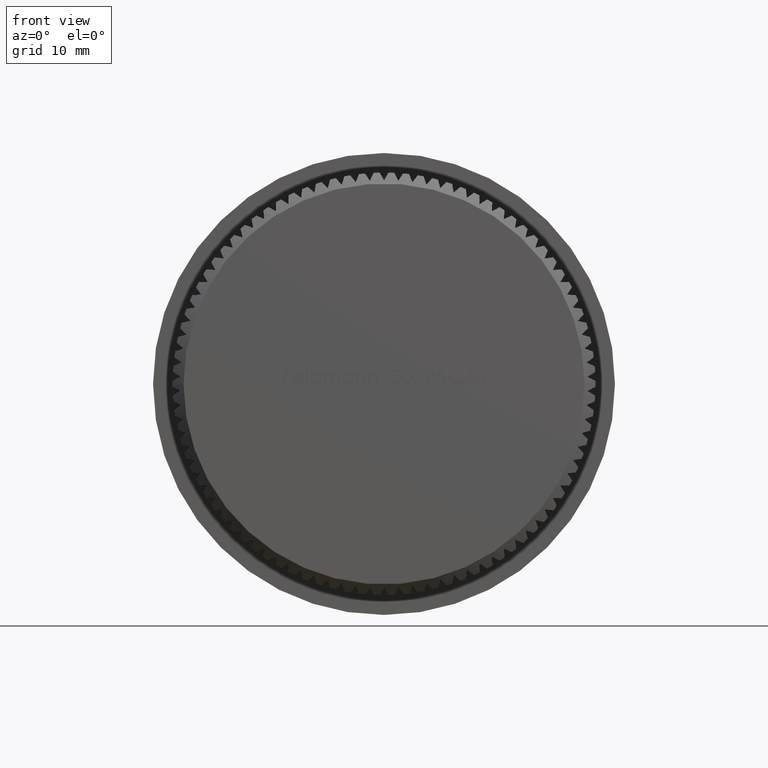
[diagram: clean part render]
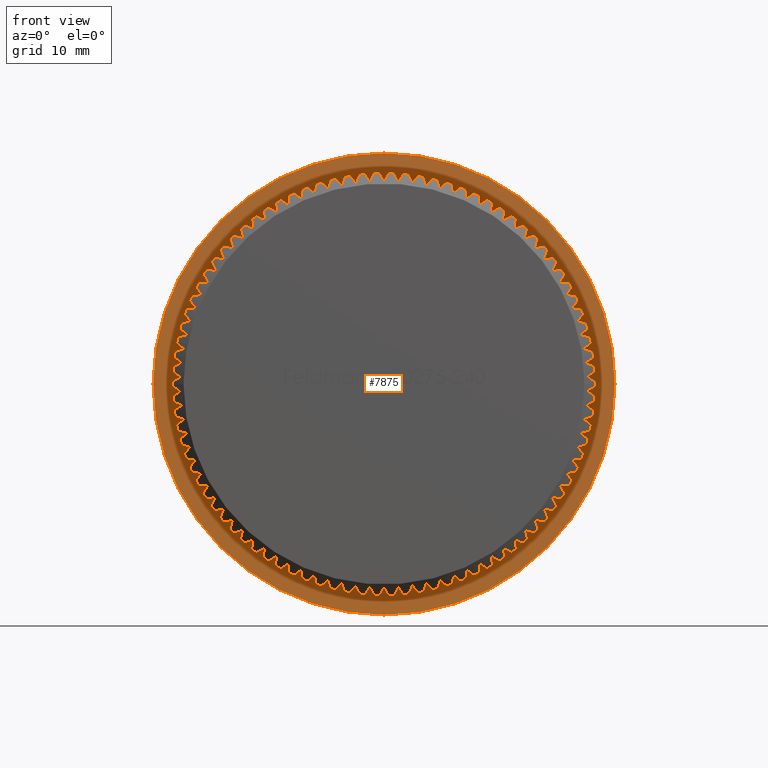
[diagram: same view with one face highlighted and labeled with its STEP entity id]
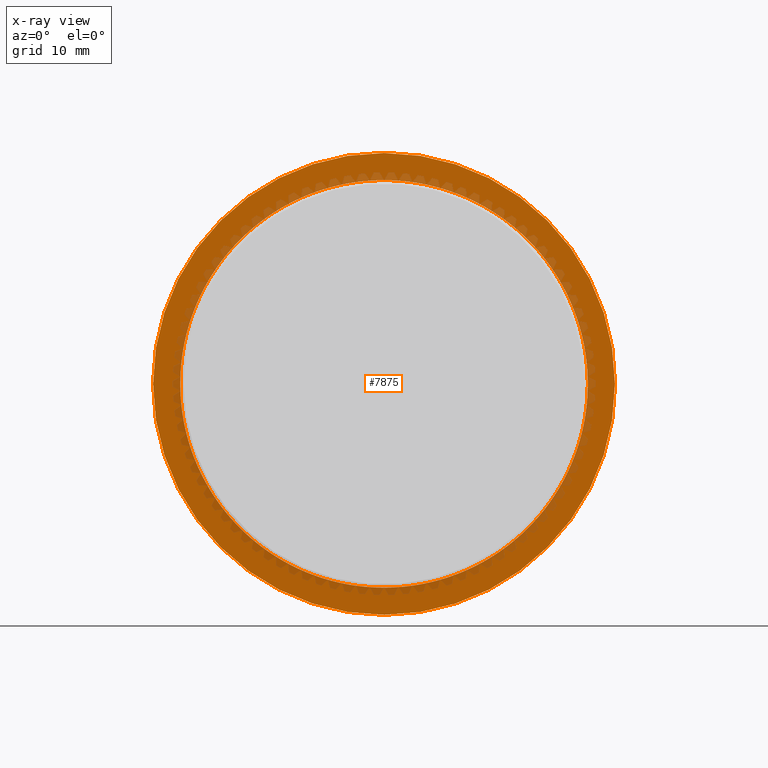
[diagram: x-ray of the same camera — body ghosted, the highlighted face saturated]
A machine part, front view. The second image highlights one B-rep face of the part: STEP entity #7875.
The next image is the same camera in x-ray: the body ghosted, the highlighted face saturated — about 19% of this face is hidden behind the body in this view.
In plain terms, the highlighted planar face has unit normal (0, -1, -0).
Its self-contained STEP definition (entity closure, byte-faithful):
#5 = DIRECTION ( 'NONE',  ( 1.000000000000000000, 0.0000000000000000000, 0.0000000000000000000 ) ) ;
#31 = EDGE_CURVE ( 'NONE', #15194, #7612, #16733, .T. ) ;
#43 = CIRCLE ( 'NONE', #12217, 18.69999999999999900 ) ;
#61 = EDGE_CURVE ( 'NONE', #9742, #3879, #12493, .T. ) ;
#77 = VERTEX_POINT ( 'NONE', #15718 ) ;
#113 = DIRECTION ( 'NONE',  ( 1.000000000000000000, 0.0000000000000000000, 0.0000000000000000000 ) ) ;
#122 = ORIENTED_EDGE ( 'NONE', *, *, #920, .F. ) ;
#129 = AXIS2_PLACEMENT_3D ( 'NONE', #2319, #7745, #571 ) ;
#152 = AXIS2_PLACEMENT_3D ( 'NONE', #22321, #15183, #18802 ) ;
#178 = CARTESIAN_POINT ( 'NONE',  ( 18.41590498132825700, 8.999999999999998200, 3.247220922371786900 ) ) ;
#233 = DIRECTION ( 'NONE',  ( 3.805014539713652200E-029, -1.000000000000000000, -0.0000000000000000000 ) ) ;
#262 = ORIENTED_EDGE ( 'NONE', *, *, #31, .F. ) ;
#306 = CIRCLE ( 'NONE', #20802, 18.69999999999999900 ) ;
#333 = EDGE_CURVE ( 'NONE', #21511, #1545, #22943, .T. ) ;
#410 = CARTESIAN_POINT ( 'NONE',  ( -3.424513085742286300E-028, 8.999999999999998200, 0.0000000000000000000 ) ) ;
#438 = DIRECTION ( 'NONE',  ( 1.000000000000000000, 0.0000000000000000000, 0.0000000000000000000 ) ) ;
#503 = EDGE_CURVE ( 'NONE', #19000, #15194, #18995, .T. ) ;
#539 = AXIS2_PLACEMENT_3D ( 'NONE', #6678, #6835, #19646 ) ;
#554 = AXIS2_PLACEMENT_3D ( 'NONE', #7730, #6038, #17039 ) ;
#571 = DIRECTION ( 'NONE',  ( 1.000000000000000000, 0.0000000000000000000, 0.0000000000000000000 ) ) ;
#577 = AXIS2_PLACEMENT_3D ( 'NONE', #9343, #20212, #9425 ) ;
#636 = CARTESIAN_POINT ( 'NONE',  ( 8.779118224096281500, 8.999999999999998200, -16.51111998646186800 ) ) ;
#650 = AXIS2_PLACEMENT_3D ( 'NONE', #6372, #9809, #11608 ) ;
#657 = DIRECTION ( 'NONE',  ( 1.000000000000000000, 0.0000000000000000000, 0.0000000000000000000 ) ) ;
#689 = ORIENTED_EDGE ( 'NONE', *, *, #12454, .F. ) ;
#697 = CARTESIAN_POINT ( 'NONE',  ( -16.80744866579438600, 8.999999999999998200, -8.197540444955821600 ) ) ;
#707 = VERTEX_POINT ( 'NONE', #21077 ) ;
#728 = CARTESIAN_POINT ( 'NONE',  ( -3.424513085742286300E-028, 8.999999999999998200, 0.0000000000000000000 ) ) ;
#748 = EDGE_CURVE ( 'NONE', #15418, #3498, #16451, .T. ) ;
#773 = CARTESIAN_POINT ( 'NONE',  ( 12.99011152758336300, 8.999999999999998200, -13.45165426633266600 ) ) ;
#783 = CARTESIAN_POINT ( 'NONE',  ( 16.19467505076889300, 8.999999999999998200, 9.350000000000191500 ) ) ;
#827 = ORIENTED_EDGE ( 'NONE', *, *, #16583, .F. ) ;
#839 = CIRCLE ( 'NONE', #8771, 18.69999999999999900 ) ;
#841 = CIRCLE ( 'NONE', #11583, 18.69999999999999900 ) ;
#856 = DIRECTION ( 'NONE',  ( 1.000000000000000000, 0.0000000000000000000, 0.0000000000000000000 ) ) ;
#900 = ORIENTED_EDGE ( 'NONE', *, *, #15365, .F. ) ;
#908 = VERTEX_POINT ( 'NONE', #15469 ) ;
#920 = EDGE_CURVE ( 'NONE', #5477, #908, #7401, .T. ) ;
#946 = AXIS2_PLACEMENT_3D ( 'NONE', #17358, #1024, #8286 ) ;
#996 = AXIS2_PLACEMENT_3D ( 'NONE', #4288, #6463, #8073 ) ;
#997 = VERTEX_POINT ( 'NONE', #8769 ) ;
#1017 = VERTEX_POINT ( 'NONE', #1671 ) ;
#1024 = DIRECTION ( 'NONE',  ( 3.805014539713652200E-029, -1.000000000000000000, -0.0000000000000000000 ) ) ;
#1068 = EDGE_CURVE ( 'NONE', #1545, #16787, #18699, .T. ) ;
#1090 = CARTESIAN_POINT ( 'NONE',  ( -2.602536987953106200, 8.999999999999998200, -18.51801288546738200 ) ) ;
#1099 = EDGE_CURVE ( 'NONE', #4153, #22805, #9386, .T. ) ;
#1106 = ORIENTED_EDGE ( 'NONE', *, *, #15175, .F. ) ;
#1124 = CARTESIAN_POINT ( 'NONE',  ( -3.424513085742286300E-028, 8.999999999999998200, 0.0000000000000000000 ) ) ;
#1141 = CARTESIAN_POINT ( 'NONE',  ( 1.304446059014882300, 8.999999999999998200, 18.65444773985873200 ) ) ;
#1170 = CARTESIAN_POINT ( 'NONE',  ( -14.73580109244572400, 8.999999999999998200, 11.51286958858978000 ) ) ;
#1221 = CARTESIAN_POINT ( 'NONE',  ( -3.424513085742286300E-028, 8.999999999999998200, 0.0000000000000000000 ) ) ;
#1257 = CARTESIAN_POINT ( 'NONE',  ( -3.424513085742286300E-028, 8.999999999999998200, 0.0000000000000000000 ) ) ;
#1330 = CARTESIAN_POINT ( 'NONE',  ( -3.424513085742286300E-028, 8.999999999999998200, 0.0000000000000000000 ) ) ;
#1359 = EDGE_CURVE ( 'NONE', #17117, #10950, #16166, .T. ) ;
#1365 = DIRECTION ( 'NONE',  ( 1.000000000000000000, 0.0000000000000000000, 0.0000000000000000000 ) ) ;
#1410 = AXIS2_PLACEMENT_3D ( 'NONE', #5283, #16213, #17944 ) ;
#1436 = CARTESIAN_POINT ( 'NONE',  ( 0.0000000000000000000, 8.999999999999998200, -18.69999999999999900 ) ) ;
#1455 = DIRECTION ( 'NONE',  ( 3.805014539713652200E-029, -1.000000000000000000, -0.0000000000000000000 ) ) ;
#1456 = EDGE_CURVE ( 'NONE', #13489, #20590, #12730, .T. ) ;
#1461 = CIRCLE ( 'NONE', #9481, 18.69999999999999900 ) ;
#1499 = VERTEX_POINT ( 'NONE', #21466 ) ;
#1512 = ORIENTED_EDGE ( 'NONE', *, *, #18920, .F. ) ;
#1527 = EDGE_CURVE ( 'NONE', #10875, #15424, #1757, .T. ) ;
#1531 = DIRECTION ( 'NONE',  ( 1.000000000000000000, 0.0000000000000000000, 0.0000000000000000000 ) ) ;
#1545 = VERTEX_POINT ( 'NONE', #178 ) ;
#1547 = DIRECTION ( 'NONE',  ( 1.000000000000000000, 0.0000000000000000000, 0.0000000000000000000 ) ) ;
#1616 = CARTESIAN_POINT ( 'NONE',  ( -3.424513085742286300E-028, 8.999999999999998200, 0.0000000000000000000 ) ) ;
#1624 = CARTESIAN_POINT ( 'NONE',  ( -3.424513085742286300E-028, 8.999999999999998200, 0.0000000000000000000 ) ) ;
#1671 = CARTESIAN_POINT ( 'NONE',  ( 17.33833808039884200, 8.999999999999998200, 7.005143296877755600 ) ) ;
#1675 = CIRCLE ( 'NONE', #20387, 18.69999999999999900 ) ;
#1690 = DIRECTION ( 'NONE',  ( 3.805014539713652200E-029, -1.000000000000000000, -0.0000000000000000000 ) ) ;
#1745 = CARTESIAN_POINT ( 'NONE',  ( -3.424513085742286300E-028, 8.999999999999998200, 0.0000000000000000000 ) ) ;
#1747 = ORIENTED_EDGE ( 'NONE', *, *, #21305, .F. ) ;
#1757 = CIRCLE ( 'NONE', #18341, 18.69999999999999900 ) ;
#1793 = CARTESIAN_POINT ( 'NONE',  ( -2.602536987953227900, 8.999999999999998200, 18.51801288546736800 ) ) ;
#1821 = AXIS2_PLACEMENT_3D ( 'NONE', #6775, #8622, #1531 ) ;
#1883 = CIRCLE ( 'NONE', #14754, 18.69999999999999900 ) ;
#1893 = ORIENTED_EDGE ( 'NONE', *, *, #12008, .F. ) ;
#1983 = DIRECTION ( 'NONE',  ( 3.805014539713652200E-029, -1.000000000000000000, -0.0000000000000000000 ) ) ;
#2022 = ORIENTED_EDGE ( 'NONE', *, *, #12561, .F. ) ;
#2023 = EDGE_CURVE ( 'NONE', #18197, #997, #20075, .T. ) ;
#2024 = VERTEX_POINT ( 'NONE', #14284 ) ;
#2040 = DIRECTION ( 'NONE',  ( 1.000000000000000000, 0.0000000000000000000, 0.0000000000000000000 ) ) ;
#2086 = VERTEX_POINT ( 'NONE', #5185 ) ;
#2096 = ORIENTED_EDGE ( 'NONE', *, *, #9741, .T. ) ;
#2174 = CARTESIAN_POINT ( 'NONE',  ( 18.41590498132832100, 8.999999999999998200, -3.247220922371418400 ) ) ;
#2177 = ORIENTED_EDGE ( 'NONE', *, *, #14369, .F. ) ;
#2203 = DIRECTION ( 'NONE',  ( 1.000000000000000000, 0.0000000000000000000, 0.0000000000000000000 ) ) ;
#2210 = ORIENTED_EDGE ( 'NONE', *, *, #22655, .F. ) ;
#2223 = ORIENTED_EDGE ( 'NONE', *, *, #6207, .F. ) ;
#2242 = CARTESIAN_POINT ( 'NONE',  ( -7.605975225517360300, 8.999999999999998200, -17.08330005791668400 ) ) ;
#2285 = CARTESIAN_POINT ( 'NONE',  ( -1.304446059015013300, 8.999999999999998200, -18.65444773985872100 ) ) ;
#2291 = CIRCLE ( 'NONE', #6119, 18.69999999999999900 ) ;
#2319 = CARTESIAN_POINT ( 'NONE',  ( -3.424513085742286300E-028, 8.999999999999998200, 0.0000000000000000000 ) ) ;
#2329 = CIRCLE ( 'NONE', #20311, 18.69999999999999900 ) ;
#2335 = VERTEX_POINT ( 'NONE', #8175 ) ;
#2339 = AXIS2_PLACEMENT_3D ( 'NONE', #6308, #8000, #20840 ) ;
#2372 = CARTESIAN_POINT ( 'NONE',  ( -3.424513085742286300E-028, 8.999999999999998200, 0.0000000000000000000 ) ) ;
#2393 = DIRECTION ( 'NONE',  ( 3.805014539713652200E-029, -1.000000000000000000, -0.0000000000000000000 ) ) ;
#2423 = ORIENTED_EDGE ( 'NONE', *, *, #10635, .F. ) ;
#2493 = CARTESIAN_POINT ( 'NONE',  ( -7.605975225517480200, 8.999999999999998200, 17.08330005791662700 ) ) ;
#2521 = CARTESIAN_POINT ( 'NONE',  ( 14.73580109244556400, 8.999999999999998200, 11.51286958858998200 ) ) ;
#2666 = AXIS2_PLACEMENT_3D ( 'NONE', #7658, #12939, #20274 ) ;
#2681 = AXIS2_PLACEMENT_3D ( 'NONE', #18194, #9133, #9205 ) ;
#2694 = AXIS2_PLACEMENT_3D ( 'NONE', #5073, #18035, #5302 ) ;
#2714 = DIRECTION ( 'NONE',  ( 3.805014539713652200E-029, -1.000000000000000000, -0.0000000000000000000 ) ) ;
#2792 = EDGE_CURVE ( 'NONE', #12621, #3866, #9907, .T. ) ;
#2903 = ORIENTED_EDGE ( 'NONE', *, *, #333, .F. ) ;
#2916 = CARTESIAN_POINT ( 'NONE',  ( 2.602536987953354400, 8.999999999999998200, -18.51801288546734600 ) ) ;
#2992 = AXIS2_PLACEMENT_3D ( 'NONE', #13374, #16996, #13290 ) ;
#3169 = DIRECTION ( 'NONE',  ( 1.000000000000000000, 0.0000000000000000000, 0.0000000000000000000 ) ) ;
#3187 = ORIENTED_EDGE ( 'NONE', *, *, #1068, .F. ) ;
#3287 = DIRECTION ( 'NONE',  ( 3.805014539713652200E-029, -1.000000000000000000, -0.0000000000000000000 ) ) ;
#3308 = CARTESIAN_POINT ( 'NONE',  ( -17.33833808039889500, 8.999999999999998200, -7.005143296877627700 ) ) ;
#3321 = ORIENTED_EDGE ( 'NONE', *, *, #14828, .F. ) ;
#3406 = AXIS2_PLACEMENT_3D ( 'NONE', #7245, #21830, #10838 ) ;
#3420 = ORIENTED_EDGE ( 'NONE', *, *, #17416, .F. ) ;
#3443 = DIRECTION ( 'NONE',  ( 1.000000000000000000, 0.0000000000000000000, 0.0000000000000000000 ) ) ;
#3467 = ORIENTED_EDGE ( 'NONE', *, *, #8042, .F. ) ;
#3478 = CIRCLE ( 'NONE', #12041, 18.69999999999999900 ) ;
#3484 = DIRECTION ( 'NONE',  ( 3.805014539713652200E-029, -1.000000000000000000, -0.0000000000000000000 ) ) ;
#3498 = VERTEX_POINT ( 'NONE', #3308 ) ;
#3529 = CARTESIAN_POINT ( 'NONE',  ( 16.19467505076908900, 8.999999999999998200, -9.349999999999848700 ) ) ;
#3559 = DIRECTION ( 'NONE',  ( 1.000000000000000000, 0.0000000000000000000, 0.0000000000000000000 ) ) ;
#3709 = DIRECTION ( 'NONE',  ( 3.805014539713652200E-029, -1.000000000000000000, -0.0000000000000000000 ) ) ;
#3727 = ORIENTED_EDGE ( 'NONE', *, *, #19428, .F. ) ;
#3785 = ORIENTED_EDGE ( 'NONE', *, *, #20125, .F. ) ;
#3799 = CIRCLE ( 'NONE', #16295, 18.69999999999999900 ) ;
#3814 = CARTESIAN_POINT ( 'NONE',  ( -3.424513085742286300E-028, 8.999999999999998200, 0.0000000000000000000 ) ) ;
#3834 = DIRECTION ( 'NONE',  ( 3.805014539713652200E-029, -1.000000000000000000, -0.0000000000000000000 ) ) ;
#3842 = CARTESIAN_POINT ( 'NONE',  ( -3.887948618292108800, 8.999999999999998200, 18.29136013372216500 ) ) ;
#3849 = VERTEX_POINT ( 'NONE', #636 ) ;
#3866 = VERTEX_POINT ( 'NONE', #8295 ) ;
#3879 = VERTEX_POINT ( 'NONE', #4631 ) ;
#3885 = ORIENTED_EDGE ( 'NONE', *, *, #11674, .F. ) ;
#3911 = DIRECTION ( 'NONE',  ( 1.000000000000000000, 0.0000000000000000000, 0.0000000000000000000 ) ) ;
#3924 = CARTESIAN_POINT ( 'NONE',  ( -3.424513085742286300E-028, 8.999999999999998200, 0.0000000000000000000 ) ) ;
#3971 = AXIS2_PLACEMENT_3D ( 'NONE', #16057, #23119, #19751 ) ;
#4016 = EDGE_CURVE ( 'NONE', #21016, #1017, #11840, .T. ) ;
#4055 = VERTEX_POINT ( 'NONE', #2916 ) ;
#4062 = DIRECTION ( 'NONE',  ( 1.000000000000000000, 0.0000000000000000000, 0.0000000000000000000 ) ) ;
#4115 = EDGE_CURVE ( 'NONE', #11912, #9344, #10745, .T. ) ;
#4117 = AXIS2_PLACEMENT_3D ( 'NONE', #3814, #12892, #438 ) ;
#4146 = EDGE_CURVE ( 'NONE', #16414, #20467, #9032, .T. ) ;
#4153 = VERTEX_POINT ( 'NONE', #11214 ) ;
#4273 = CARTESIAN_POINT ( 'NONE',  ( -3.424513085742286300E-028, 8.999999999999998200, 0.0000000000000000000 ) ) ;
#4286 = VERTEX_POINT ( 'NONE', #2521 ) ;
#4288 = CARTESIAN_POINT ( 'NONE',  ( 21.19999999999999900, 8.999999999999998200, 0.0000000000000000000 ) ) ;
#4359 = VERTEX_POINT ( 'NONE', #20728 ) ;
#4380 = ORIENTED_EDGE ( 'NONE', *, *, #10911, .F. ) ;
#4430 = CARTESIAN_POINT ( 'NONE',  ( -3.424513085742286300E-028, 8.999999999999998200, 0.0000000000000000000 ) ) ;
#4452 = VERTEX_POINT ( 'NONE', #1170 ) ;
#4469 = AXIS2_PLACEMENT_3D ( 'NONE', #6226, #13442, #20453 ) ;
#4501 = DIRECTION ( 'NONE',  ( 3.805014539713652200E-029, -1.000000000000000000, -0.0000000000000000000 ) ) ;
#4562 = CIRCLE ( 'NONE', #22649, 18.69999999999999900 ) ;
#4576 = DIRECTION ( 'NONE',  ( 1.000000000000000000, 0.0000000000000000000, 0.0000000000000000000 ) ) ;
#4579 = DIRECTION ( 'NONE',  ( 3.805014539713652200E-029, -1.000000000000000000, -0.0000000000000000000 ) ) ;
#4589 = EDGE_CURVE ( 'NONE', #8018, #20594, #7026, .T. ) ;
#4600 = DIRECTION ( 'NONE',  ( 3.805014539713652200E-029, -1.000000000000000000, -0.0000000000000000000 ) ) ;
#4631 = CARTESIAN_POINT ( 'NONE',  ( -9.909490241160954200, 8.999999999999998200, 15.85849939812515300 ) ) ;
#4658 = VERTEX_POINT ( 'NONE', #20619 ) ;
#4672 = ORIENTED_EDGE ( 'NONE', *, *, #21031, .F. ) ;
#4682 = DIRECTION ( 'NONE',  ( 1.000000000000000000, 0.0000000000000000000, 0.0000000000000000000 ) ) ;
#4689 = DIRECTION ( 'NONE',  ( 3.805014539713652200E-029, -1.000000000000000000, -0.0000000000000000000 ) ) ;
#4698 = AXIS2_PLACEMENT_3D ( 'NONE', #15018, #11245, #14943 ) ;
#4811 = DIRECTION ( 'NONE',  ( 3.805014539713652200E-029, -1.000000000000000000, -0.0000000000000000000 ) ) ;
#4827 = VERTEX_POINT ( 'NONE', #1141 ) ;
#4865 = VERTEX_POINT ( 'NONE', #15345 ) ;
#4916 = VERTEX_POINT ( 'NONE', #21328 ) ;
#4920 = DIRECTION ( 'NONE',  ( 3.805014539713652200E-029, -1.000000000000000000, -0.0000000000000000000 ) ) ;
#4966 = ORIENTED_EDGE ( 'NONE', *, *, #1099, .F. ) ;
#5035 = AXIS2_PLACEMENT_3D ( 'NONE', #1221, #8322, #19282 ) ;
#5057 = AXIS2_PLACEMENT_3D ( 'NONE', #15702, #22682, #15617 ) ;
#5063 = CIRCLE ( 'NONE', #4469, 18.69999999999999900 ) ;
#5073 = CARTESIAN_POINT ( 'NONE',  ( -3.424513085742286300E-028, 8.999999999999998200, 0.0000000000000000000 ) ) ;
#5074 = DIRECTION ( 'NONE',  ( 3.805014539713652200E-029, -1.000000000000000000, -0.0000000000000000000 ) ) ;
#5098 = CARTESIAN_POINT ( 'NONE',  ( 18.14453008136109000, 8.999999999999998200, 4.523939447713972900 ) ) ;
#5136 = VERTEX_POINT ( 'NONE', #7277 ) ;
#5175 = AXIS2_PLACEMENT_3D ( 'NONE', #21671, #14906, #4062 ) ;
#5185 = CARTESIAN_POINT ( 'NONE',  ( 12.99011152758308400, 8.999999999999998200, 13.45165426633293600 ) ) ;
#5213 = AXIS2_PLACEMENT_3D ( 'NONE', #15737, #23114, #21390 ) ;
#5258 = EDGE_CURVE ( 'NONE', #18368, #10875, #17173, .T. ) ;
#5270 = CARTESIAN_POINT ( 'NONE',  ( -12.02012830113820900, 8.999999999999998200, -14.32503108632495300 ) ) ;
#5280 = DIRECTION ( 'NONE',  ( 1.000000000000000000, 0.0000000000000000000, 0.0000000000000000000 ) ) ;
#5283 = CARTESIAN_POINT ( 'NONE',  ( -3.424513085742286300E-028, 8.999999999999998200, 0.0000000000000000000 ) ) ;
#5298 = DIRECTION ( 'NONE',  ( 3.805014539713652200E-029, -1.000000000000000000, -0.0000000000000000000 ) ) ;
#5302 = DIRECTION ( 'NONE',  ( 1.000000000000000000, 0.0000000000000000000, 0.0000000000000000000 ) ) ;
#5309 = AXIS2_PLACEMENT_3D ( 'NONE', #3924, #7810, #13179 ) ;
#5372 = CARTESIAN_POINT ( 'NONE',  ( 2.602536987952966700, 8.999999999999998200, 18.51801288546740000 ) ) ;
#5379 = ORIENTED_EDGE ( 'NONE', *, *, #11936, .F. ) ;
#5409 = DIRECTION ( 'NONE',  ( 1.000000000000000000, 0.0000000000000000000, 0.0000000000000000000 ) ) ;
#5433 = VERTEX_POINT ( 'NONE', #16109 ) ;
#5468 = ORIENTED_EDGE ( 'NONE', *, *, #8424, .F. ) ;
#5477 = VERTEX_POINT ( 'NONE', #1436 ) ;
#5504 = DIRECTION ( 'NONE',  ( 3.805014539713652200E-029, -1.000000000000000000, -0.0000000000000000000 ) ) ;
#5548 = CIRCLE ( 'NONE', #1821, 18.69999999999999900 ) ;
#5593 = EDGE_CURVE ( 'NONE', #5136, #6287, #15426, .T. ) ;
#5715 = AXIS2_PLACEMENT_3D ( 'NONE', #8614, #11991, #17614 ) ;
#5722 = VERTEX_POINT ( 'NONE', #2285 ) ;
#5743 = DIRECTION ( 'NONE',  ( 1.000000000000000000, 0.0000000000000000000, 0.0000000000000000000 ) ) ;
#5768 = ORIENTED_EDGE ( 'NONE', *, *, #1359, .F. ) ;
#5777 = DIRECTION ( 'NONE',  ( 1.000000000000000000, 0.0000000000000000000, 0.0000000000000000000 ) ) ;
#5784 = EDGE_CURVE ( 'NONE', #20590, #4286, #8379, .T. ) ;
#5824 = EDGE_CURVE ( 'NONE', #12567, #15961, #6370, .T. ) ;
#5846 = CARTESIAN_POINT ( 'NONE',  ( -3.424513085742286300E-028, 8.999999999999998200, 0.0000000000000000000 ) ) ;
#5933 = CARTESIAN_POINT ( 'NONE',  ( -3.424513085742286300E-028, 8.999999999999998200, 0.0000000000000000000 ) ) ;
#5939 = CARTESIAN_POINT ( 'NONE',  ( -3.424513085742286300E-028, 8.999999999999998200, 0.0000000000000000000 ) ) ;
#5973 = ORIENTED_EDGE ( 'NONE', *, *, #5258, .F. ) ;
#6038 = DIRECTION ( 'NONE',  ( 3.805014539713652200E-029, -1.000000000000000000, -0.0000000000000000000 ) ) ;
#6043 = VERTEX_POINT ( 'NONE', #19924 ) ;
#6044 = CIRCLE ( 'NONE', #3406, 18.69999999999999900 ) ;
#6057 = CARTESIAN_POINT ( 'NONE',  ( 12.02012830113811300, 8.999999999999998200, 14.32503108632503200 ) ) ;
#6089 = CARTESIAN_POINT ( 'NONE',  ( -18.14453008136114700, 8.999999999999998200, 4.523939447713735800 ) ) ;
#6100 = DIRECTION ( 'NONE',  ( 3.805014539713652200E-029, -1.000000000000000000, -0.0000000000000000000 ) ) ;
#6119 = AXIS2_PLACEMENT_3D ( 'NONE', #17297, #19346, #15398 ) ;
#6188 = ORIENTED_EDGE ( 'NONE', *, *, #5784, .F. ) ;
#6197 = CARTESIAN_POINT ( 'NONE',  ( 5.154418553777656300, 8.999999999999998200, 17.97559371404663200 ) ) ;
#6207 = EDGE_CURVE ( 'NONE', #4916, #16442, #19406, .T. ) ;
#6208 = CIRCLE ( 'NONE', #15520, 18.69999999999999900 ) ;
#6225 = CIRCLE ( 'NONE', #5035, 18.69999999999999900 ) ;
#6226 = CARTESIAN_POINT ( 'NONE',  ( -3.424513085742286300E-028, 8.999999999999998200, 0.0000000000000000000 ) ) ;
#6235 = DIRECTION ( 'NONE',  ( 1.000000000000000000, 0.0000000000000000000, 0.0000000000000000000 ) ) ;
#6238 = EDGE_CURVE ( 'NONE', #6884, #8456, #21914, .T. ) ;
#6259 = DIRECTION ( 'NONE',  ( 1.000000000000000000, 0.0000000000000000000, 0.0000000000000000000 ) ) ;
#6270 = VERTEX_POINT ( 'NONE', #9830 ) ;
#6280 = CARTESIAN_POINT ( 'NONE',  ( -21.20000000000000300, 8.999999999999998200, 2.596251214192388800E-015 ) ) ;
#6287 = VERTEX_POINT ( 'NONE', #6709 ) ;
#6308 = CARTESIAN_POINT ( 'NONE',  ( -3.424513085742286300E-028, 8.999999999999998200, 0.0000000000000000000 ) ) ;
#6313 = DIRECTION ( 'NONE',  ( 1.000000000000000000, 0.0000000000000000000, 0.0000000000000000000 ) ) ;
#6370 = CIRCLE ( 'NONE', #14895, 18.69999999999999900 ) ;
#6372 = CARTESIAN_POINT ( 'NONE',  ( -3.424513085742286300E-028, 8.999999999999998200, 0.0000000000000000000 ) ) ;
#6395 = AXIS2_PLACEMENT_3D ( 'NONE', #8785, #3484, #5280 ) ;
#6421 = EDGE_CURVE ( 'NONE', #14464, #3849, #15981, .T. ) ;
#6459 = CIRCLE ( 'NONE', #2681, 18.69999999999999900 ) ;
#6461 = DIRECTION ( 'NONE',  ( 3.805014539713652200E-029, -1.000000000000000000, -0.0000000000000000000 ) ) ;
#6463 = DIRECTION ( 'NONE',  ( 3.805014539713652200E-029, -1.000000000000000000, -0.0000000000000000000 ) ) ;
#6474 = CARTESIAN_POINT ( 'NONE',  ( -1.304446059015145900, 8.999999999999998200, 18.65444773985871100 ) ) ;
#6494 = CARTESIAN_POINT ( 'NONE',  ( -3.424513085742286300E-028, 8.999999999999998200, 0.0000000000000000000 ) ) ;
#6503 = CARTESIAN_POINT ( 'NONE',  ( -12.99011152758327200, 8.999999999999998200, 13.45165426633275300 ) ) ;
#6511 = CARTESIAN_POINT ( 'NONE',  ( -3.424513085742286300E-028, 8.999999999999998200, 0.0000000000000000000 ) ) ;
#6554 = CARTESIAN_POINT ( 'NONE',  ( -3.424513085742286300E-028, 8.999999999999998200, 0.0000000000000000000 ) ) ;
#6615 = VERTEX_POINT ( 'NONE', #6280 ) ;
#6621 = CARTESIAN_POINT ( 'NONE',  ( 12.02012830113840500, 8.999999999999998200, -14.32503108632479000 ) ) ;
#6644 = EDGE_CURVE ( 'NONE', #9060, #12567, #18263, .T. ) ;
#6670 = DIRECTION ( 'NONE',  ( 1.000000000000000000, 0.0000000000000000000, 0.0000000000000000000 ) ) ;
#6678 = CARTESIAN_POINT ( 'NONE',  ( -3.424513085742286300E-028, 8.999999999999998200, 0.0000000000000000000 ) ) ;
#6709 = CARTESIAN_POINT ( 'NONE',  ( -12.02012830113830300, 8.999999999999998200, 14.32503108632487400 ) ) ;
#6750 = DIRECTION ( 'NONE',  ( 1.000000000000000000, 0.0000000000000000000, 0.0000000000000000000 ) ) ;
#6775 = CARTESIAN_POINT ( 'NONE',  ( -3.424513085742286300E-028, 8.999999999999998200, 0.0000000000000000000 ) ) ;
#6812 = EDGE_CURVE ( 'NONE', #21895, #6884, #11474, .T. ) ;
#6835 = DIRECTION ( 'NONE',  ( 3.805014539713652200E-029, -1.000000000000000000, -0.0000000000000000000 ) ) ;
#6884 = VERTEX_POINT ( 'NONE', #12132 ) ;
#6925 = EDGE_CURVE ( 'NONE', #8433, #2086, #1883, .T. ) ;
#6942 = VERTEX_POINT ( 'NONE', #697 ) ;
#6975 = ORIENTED_EDGE ( 'NONE', *, *, #10345, .F. ) ;
#7014 = EDGE_CURVE ( 'NONE', #20594, #16652, #12028, .T. ) ;
#7026 = CIRCLE ( 'NONE', #4117, 18.69999999999999900 ) ;
#7090 = CIRCLE ( 'NONE', #22018, 18.69999999999999900 ) ;
#7106 = ORIENTED_EDGE ( 'NONE', *, *, #18413, .F. ) ;
#7183 = CIRCLE ( 'NONE', #14621, 18.69999999999999900 ) ;
#7207 = ORIENTED_EDGE ( 'NONE', *, *, #748, .F. ) ;
#7245 = CARTESIAN_POINT ( 'NONE',  ( -3.424513085742286300E-028, 8.999999999999998200, 0.0000000000000000000 ) ) ;
#7246 = EDGE_CURVE ( 'NONE', #6615, #14787, #15431, .T. ) ;
#7253 = DIRECTION ( 'NONE',  ( 3.805014539713652200E-029, -1.000000000000000000, -0.0000000000000000000 ) ) ;
#7265 = DIRECTION ( 'NONE',  ( 1.000000000000000000, 0.0000000000000000000, 0.0000000000000000000 ) ) ;
#7277 = CARTESIAN_POINT ( 'NONE',  ( -10.99158421786926700, 8.999999999999998200, 15.12861779481150200 ) ) ;
#7313 = DIRECTION ( 'NONE',  ( 3.805014539713652200E-029, -1.000000000000000000, -0.0000000000000000000 ) ) ;
#7361 = CARTESIAN_POINT ( 'NONE',  ( -3.424513085742286300E-028, 8.999999999999998200, 0.0000000000000000000 ) ) ;
#7401 = CIRCLE ( 'NONE', #650, 18.69999999999999900 ) ;
#7453 = DIRECTION ( 'NONE',  ( 3.805014539713652200E-029, -1.000000000000000000, -0.0000000000000000000 ) ) ;
#7481 = FACE_BOUND ( 'NONE', #15311, .T. ) ;
#7521 = CARTESIAN_POINT ( 'NONE',  ( -18.59755944338671800, 8.999999999999998200, 1.954682263105064900 ) ) ;
#7576 = EDGE_CURVE ( 'NONE', #77, #19230, #6044, .T. ) ;
#7582 = DIRECTION ( 'NONE',  ( 3.805014539713652200E-029, -1.000000000000000000, -0.0000000000000000000 ) ) ;
#7612 = VERTEX_POINT ( 'NONE', #16488 ) ;
#7625 = CIRCLE ( 'NONE', #13102, 18.69999999999999900 ) ;
#7658 = CARTESIAN_POINT ( 'NONE',  ( -3.424513085742286300E-028, 8.999999999999998200, 0.0000000000000000000 ) ) ;
#7695 = VERTEX_POINT ( 'NONE', #21752 ) ;
#7697 = CARTESIAN_POINT ( 'NONE',  ( 5.154418553778016900, 8.999999999999998200, -17.97559371404652500 ) ) ;
#7730 = CARTESIAN_POINT ( 'NONE',  ( -3.424513085742286300E-028, 8.999999999999998200, 0.0000000000000000000 ) ) ;
#7745 = DIRECTION ( 'NONE',  ( 3.805014539713652200E-029, -1.000000000000000000, -0.0000000000000000000 ) ) ;
#7752 = CIRCLE ( 'NONE', #20194, 18.69999999999999900 ) ;
#7802 = DIRECTION ( 'NONE',  ( 3.805014539713652200E-029, -1.000000000000000000, -0.0000000000000000000 ) ) ;
#7810 = DIRECTION ( 'NONE',  ( 3.805014539713652200E-029, -1.000000000000000000, -0.0000000000000000000 ) ) ;
#7867 = ORIENTED_EDGE ( 'NONE', *, *, #2792, .F. ) ;
#7875 = ADVANCED_FACE ( 'NONE', ( #11177, #7481 ), #17579, .T. ) ;
#7876 = CARTESIAN_POINT ( 'NONE',  ( -3.424513085742286300E-028, 8.999999999999998200, 0.0000000000000000000 ) ) ;
#7903 = AXIS2_PLACEMENT_3D ( 'NONE', #22509, #17170, #6259 ) ;
#7967 = DIRECTION ( 'NONE',  ( 3.805014539713652200E-029, -1.000000000000000000, -0.0000000000000000000 ) ) ;
#8000 = DIRECTION ( 'NONE',  ( 3.805014539713652200E-029, -1.000000000000000000, -0.0000000000000000000 ) ) ;
#8018 = VERTEX_POINT ( 'NONE', #22863 ) ;
#8042 = EDGE_CURVE ( 'NONE', #15424, #11132, #3799, .T. ) ;
#8073 = DIRECTION ( 'NONE',  ( 1.000000000000000000, 3.805014539713652200E-029, 0.0000000000000000000 ) ) ;
#8099 = AXIS2_PLACEMENT_3D ( 'NONE', #5846, #22122, #5777 ) ;
#8171 = AXIS2_PLACEMENT_3D ( 'NONE', #21139, #22946, #1365 ) ;
#8175 = CARTESIAN_POINT ( 'NONE',  ( -17.33833808039893800, 8.999999999999998200, 7.005143296877509600 ) ) ;
#8222 = CIRCLE ( 'NONE', #5175, 18.69999999999999900 ) ;
#8233 = DIRECTION ( 'NONE',  ( 1.000000000000000000, 0.0000000000000000000, 0.0000000000000000000 ) ) ;
#8280 = CIRCLE ( 'NONE', #5309, 18.69999999999999900 ) ;
#8286 = DIRECTION ( 'NONE',  ( 1.000000000000000000, 0.0000000000000000000, 0.0000000000000000000 ) ) ;
#8292 = ORIENTED_EDGE ( 'NONE', *, *, #21342, .F. ) ;
#8295 = CARTESIAN_POINT ( 'NONE',  ( 3.887948618291863700, 8.999999999999998200, 18.29136013372221800 ) ) ;
#8305 = DIRECTION ( 'NONE',  ( 1.000000000000000000, 0.0000000000000000000, 0.0000000000000000000 ) ) ;
#8322 = DIRECTION ( 'NONE',  ( 3.805014539713652200E-029, -1.000000000000000000, -0.0000000000000000000 ) ) ;
#8341 = ORIENTED_EDGE ( 'NONE', *, *, #22047, .F. ) ;
#8345 = CARTESIAN_POINT ( 'NONE',  ( -3.424513085742286300E-028, 8.999999999999998200, 0.0000000000000000000 ) ) ;
#8379 = CIRCLE ( 'NONE', #3971, 18.69999999999999900 ) ;
#8424 = EDGE_CURVE ( 'NONE', #3866, #11600, #7183, .T. ) ;
#8428 = DIRECTION ( 'NONE',  ( 3.805014539713652200E-029, -1.000000000000000000, -0.0000000000000000000 ) ) ;
#8433 = VERTEX_POINT ( 'NONE', #19084 ) ;
#8456 = VERTEX_POINT ( 'NONE', #23368 ) ;
#8509 = AXIS2_PLACEMENT_3D ( 'NONE', #18084, #21853, #7265 ) ;
#8533 = CIRCLE ( 'NONE', #14090, 18.69999999999999900 ) ;
#8614 = CARTESIAN_POINT ( 'NONE',  ( -3.424513085742286300E-028, 8.999999999999998200, 0.0000000000000000000 ) ) ;
#8622 = DIRECTION ( 'NONE',  ( 3.805014539713652200E-029, -1.000000000000000000, -0.0000000000000000000 ) ) ;
#8703 = ORIENTED_EDGE ( 'NONE', *, *, #11779, .F. ) ;
#8714 = AXIS2_PLACEMENT_3D ( 'NONE', #1330, #10164, #17341 ) ;
#8742 = AXIS2_PLACEMENT_3D ( 'NONE', #2372, #13090, #3911 ) ;
#8769 = CARTESIAN_POINT ( 'NONE',  ( 18.68860846525708300, 8.999999999999998200, 0.6526205883369569100 ) ) ;
#8771 = AXIS2_PLACEMENT_3D ( 'NONE', #20503, #13406, #856 ) ;
#8772 = ORIENTED_EDGE ( 'NONE', *, *, #6925, .F. ) ;
#8773 = DIRECTION ( 'NONE',  ( 1.000000000000000000, 0.0000000000000000000, 0.0000000000000000000 ) ) ;
#8778 = EDGE_CURVE ( 'NONE', #5722, #5477, #7752, .T. ) ;
#8785 = CARTESIAN_POINT ( 'NONE',  ( -3.424513085742286300E-028, 8.999999999999998200, 0.0000000000000000000 ) ) ;
#8803 = VERTEX_POINT ( 'NONE', #14219 ) ;
#8838 = CARTESIAN_POINT ( 'NONE',  ( -3.424513085742286300E-028, 8.999999999999998200, 0.0000000000000000000 ) ) ;
#8857 = CIRCLE ( 'NONE', #16241, 18.69999999999999900 ) ;
#9032 = CIRCLE ( 'NONE', #19568, 18.69999999999999900 ) ;
#9040 = CARTESIAN_POINT ( 'NONE',  ( -3.424513085742286300E-028, 8.999999999999998200, 0.0000000000000000000 ) ) ;
#9060 = VERTEX_POINT ( 'NONE', #19326 ) ;
#9121 = VERTEX_POINT ( 'NONE', #22681 ) ;
#9133 = DIRECTION ( 'NONE',  ( 3.805014539713652200E-029, -1.000000000000000000, -0.0000000000000000000 ) ) ;
#9164 = DIRECTION ( 'NONE',  ( 1.000000000000000000, 0.0000000000000000000, 0.0000000000000000000 ) ) ;
#9205 = DIRECTION ( 'NONE',  ( 1.000000000000000000, 0.0000000000000000000, 0.0000000000000000000 ) ) ;
#9220 = CARTESIAN_POINT ( 'NONE',  ( 3.887948618292234500, 8.999999999999998200, -18.29136013372213700 ) ) ;
#9344 = VERTEX_POINT ( 'NONE', #20013 ) ;
#9343 = CARTESIAN_POINT ( 'NONE',  ( -3.424513085742286300E-028, 8.999999999999998200, 0.0000000000000000000 ) ) ;
#9364 = CIRCLE ( 'NONE', #18944, 18.69999999999999900 ) ;
#9386 = CIRCLE ( 'NONE', #22837, 18.69999999999999900 ) ;
#9394 = CARTESIAN_POINT ( 'NONE',  ( -3.424513085742286300E-028, 8.999999999999998200, 0.0000000000000000000 ) ) ;
#9425 = DIRECTION ( 'NONE',  ( 1.000000000000000000, 0.0000000000000000000, 0.0000000000000000000 ) ) ;
#9481 = AXIS2_PLACEMENT_3D ( 'NONE', #9973, #2714, #18950 ) ;
#9499 = CARTESIAN_POINT ( 'NONE',  ( -3.424513085742286300E-028, 8.999999999999998200, 0.0000000000000000000 ) ) ;
#9617 = CARTESIAN_POINT ( 'NONE',  ( -18.41590498132827500, 8.999999999999998200, -3.247220922371670600 ) ) ;
#9741 = EDGE_CURVE ( 'NONE', #14787, #6615, #10266, .T. ) ;
#9742 = VERTEX_POINT ( 'NONE', #12647 ) ;
#9777 = EDGE_CURVE ( 'NONE', #997, #21511, #3478, .T. ) ;
#9809 = DIRECTION ( 'NONE',  ( 3.805014539713652200E-029, -1.000000000000000000, -0.0000000000000000000 ) ) ;
#9830 = CARTESIAN_POINT ( 'NONE',  ( -18.14453008136111800, 8.999999999999998200, -4.523939447713859300 ) ) ;
#9840 = CIRCLE ( 'NONE', #15380, 18.69999999999999900 ) ;
#9907 = CIRCLE ( 'NONE', #10200, 18.69999999999999900 ) ;
#9973 = CARTESIAN_POINT ( 'NONE',  ( -3.424513085742286300E-028, 8.999999999999998200, 0.0000000000000000000 ) ) ;
#10025 = AXIS2_PLACEMENT_3D ( 'NONE', #22860, #10122, #13990 ) ;
#10122 = DIRECTION ( 'NONE',  ( 3.805014539713652200E-029, -1.000000000000000000, -0.0000000000000000000 ) ) ;
#10153 = EDGE_CURVE ( 'NONE', #14422, #5722, #17597, .T. ) ;
#10164 = DIRECTION ( 'NONE',  ( 3.805014539713652200E-029, -1.000000000000000000, -0.0000000000000000000 ) ) ;
#10194 = EDGE_CURVE ( 'NONE', #1499, #11171, #17294, .T. ) ;
#10200 = AXIS2_PLACEMENT_3D ( 'NONE', #19558, #3287, #3443 ) ;
#10258 = CARTESIAN_POINT ( 'NONE',  ( -3.424513085742286300E-028, 8.999999999999998200, 0.0000000000000000000 ) ) ;
#10266 = CIRCLE ( 'NONE', #2694, 21.20000000000000300 ) ;
#10340 = CARTESIAN_POINT ( 'NONE',  ( -3.424513085742286300E-028, 8.999999999999998200, 0.0000000000000000000 ) ) ;
#10345 = EDGE_CURVE ( 'NONE', #4055, #22516, #18153, .T. ) ;
#10367 = ORIENTED_EDGE ( 'NONE', *, *, #19388, .F. ) ;
#10369 = EDGE_CURVE ( 'NONE', #10824, #4865, #15894, .T. ) ;
#10409 = AXIS2_PLACEMENT_3D ( 'NONE', #14388, #1690, #657 ) ;
#10449 = DIRECTION ( 'NONE',  ( 3.805014539713652200E-029, -1.000000000000000000, -0.0000000000000000000 ) ) ;
#10482 = CARTESIAN_POINT ( 'NONE',  ( 10.99158421786937200, 8.999999999999998200, -15.12861779481142900 ) ) ;
#10554 = DIRECTION ( 'NONE',  ( 3.805014539713652200E-029, -1.000000000000000000, -0.0000000000000000000 ) ) ;
#10597 = ORIENTED_EDGE ( 'NONE', *, *, #9777, .F. ) ;
#10602 = DIRECTION ( 'NONE',  ( 3.805014539713652200E-029, -1.000000000000000000, -0.0000000000000000000 ) ) ;
#10635 = EDGE_CURVE ( 'NONE', #6942, #16829, #18424, .T. ) ;
#10653 = ORIENTED_EDGE ( 'NONE', *, *, #20998, .F. ) ;
#10681 = CARTESIAN_POINT ( 'NONE',  ( -3.424513085742286300E-028, 8.999999999999998200, 0.0000000000000000000 ) ) ;
#10690 = AXIS2_PLACEMENT_3D ( 'NONE', #15598, #11956, #17423 ) ;
#10691 = CARTESIAN_POINT ( 'NONE',  ( -3.424513085742286300E-028, 8.999999999999998200, 0.0000000000000000000 ) ) ;
#10708 = DIRECTION ( 'NONE',  ( 1.000000000000000000, 0.0000000000000000000, 0.0000000000000000000 ) ) ;
#10723 = DIRECTION ( 'NONE',  ( 1.000000000000000000, 0.0000000000000000000, 0.0000000000000000000 ) ) ;
#10745 = CIRCLE ( 'NONE', #12459, 18.69999999999999900 ) ;
#10819 = ORIENTED_EDGE ( 'NONE', *, *, #15546, .F. ) ;
#10824 = VERTEX_POINT ( 'NONE', #20704 ) ;
#10836 = DIRECTION ( 'NONE',  ( 3.805014539713652200E-029, -1.000000000000000000, -0.0000000000000000000 ) ) ;
#10838 = DIRECTION ( 'NONE',  ( 1.000000000000000000, 0.0000000000000000000, 0.0000000000000000000 ) ) ;
#10875 = VERTEX_POINT ( 'NONE', #10482 ) ;
#10878 = CARTESIAN_POINT ( 'NONE',  ( -3.424513085742286300E-028, 8.999999999999998200, 0.0000000000000000000 ) ) ;
#10911 = EDGE_CURVE ( 'NONE', #16442, #6043, #15295, .T. ) ;
#10950 = VERTEX_POINT ( 'NONE', #3842 ) ;
#10996 = DIRECTION ( 'NONE',  ( 3.805014539713652200E-029, -1.000000000000000000, -0.0000000000000000000 ) ) ;
#11054 = DIRECTION ( 'NONE',  ( 1.000000000000000000, 0.0000000000000000000, 0.0000000000000000000 ) ) ;
#11132 = VERTEX_POINT ( 'NONE', #773 ) ;
#11136 = CARTESIAN_POINT ( 'NONE',  ( -3.424513085742286300E-028, 8.999999999999998200, 0.0000000000000000000 ) ) ;
#11171 = VERTEX_POINT ( 'NONE', #16941 ) ;
#11177 = FACE_OUTER_BOUND ( 'NONE', #20937, .T. ) ;
#11214 = CARTESIAN_POINT ( 'NONE',  ( 17.33833808039899100, 8.999999999999998200, -7.005143296877390600 ) ) ;
#11245 = DIRECTION ( 'NONE',  ( 3.805014539713652200E-029, -1.000000000000000000, -0.0000000000000000000 ) ) ;
#11269 = AXIS2_PLACEMENT_3D ( 'NONE', #11136, #18219, #11054 ) ;
#11294 = CARTESIAN_POINT ( 'NONE',  ( -3.424513085742286300E-028, 8.999999999999998200, 0.0000000000000000000 ) ) ;
#11317 = CIRCLE ( 'NONE', #11726, 18.69999999999999900 ) ;
#11474 = CIRCLE ( 'NONE', #539, 18.69999999999999900 ) ;
#11555 = ORIENTED_EDGE ( 'NONE', *, *, #20520, .F. ) ;
#11583 = AXIS2_PLACEMENT_3D ( 'NONE', #16386, #5074, #18270 ) ;
#11600 = VERTEX_POINT ( 'NONE', #5372 ) ;
#11608 = DIRECTION ( 'NONE',  ( 1.000000000000000000, 0.0000000000000000000, 0.0000000000000000000 ) ) ;
#11631 = EDGE_CURVE ( 'NONE', #3849, #18368, #43, .T. ) ;
#11674 = EDGE_CURVE ( 'NONE', #8456, #2335, #18666, .T. ) ;
#11711 = DIRECTION ( 'NONE',  ( 3.805014539713652200E-029, -1.000000000000000000, -0.0000000000000000000 ) ) ;
#11726 = AXIS2_PLACEMENT_3D ( 'NONE', #21518, #7313, #5409 ) ;
#11779 = EDGE_CURVE ( 'NONE', #5433, #4452, #22879, .T. ) ;
#11799 = EDGE_CURVE ( 'NONE', #11600, #4827, #7090, .T. ) ;
#11810 = ORIENTED_EDGE ( 'NONE', *, *, #10369, .F. ) ;
#11840 = CIRCLE ( 'NONE', #19731, 18.69999999999999900 ) ;
#11867 = CIRCLE ( 'NONE', #22272, 18.69999999999999900 ) ;
#11879 = CARTESIAN_POINT ( 'NONE',  ( -3.424513085742286300E-028, 8.999999999999998200, 0.0000000000000000000 ) ) ;
#11883 = CARTESIAN_POINT ( 'NONE',  ( -18.59755944338670400, 8.999999999999998200, -1.954682263105188800 ) ) ;
#11887 = ORIENTED_EDGE ( 'NONE', *, *, #6644, .F. ) ;
#11912 = VERTEX_POINT ( 'NONE', #6057 ) ;
#11913 = EDGE_CURVE ( 'NONE', #3498, #6942, #306, .T. ) ;
#11919 = CIRCLE ( 'NONE', #23006, 18.69999999999999900 ) ;
#11936 = EDGE_CURVE ( 'NONE', #2024, #13489, #2291, .T. ) ;
#11948 = ORIENTED_EDGE ( 'NONE', *, *, #8778, .F. ) ;
#11951 = CARTESIAN_POINT ( 'NONE',  ( -18.41590498132830300, 8.999999999999998200, 3.247220922371542300 ) ) ;
#11956 = DIRECTION ( 'NONE',  ( 3.805014539713652200E-029, -1.000000000000000000, -0.0000000000000000000 ) ) ;
#11958 = CARTESIAN_POINT ( 'NONE',  ( 15.50300260677915900, 8.999999999999998200, 10.45690729490314800 ) ) ;
#11991 = DIRECTION ( 'NONE',  ( 3.805014539713652200E-029, -1.000000000000000000, -0.0000000000000000000 ) ) ;
#12008 = EDGE_CURVE ( 'NONE', #6287, #14490, #6208, .T. ) ;
#12010 = AXIS2_PLACEMENT_3D ( 'NONE', #15336, #17148, #20771 ) ;
#12028 = CIRCLE ( 'NONE', #8714, 18.69999999999999900 ) ;
#12033 = DIRECTION ( 'NONE',  ( 1.000000000000000000, 0.0000000000000000000, 0.0000000000000000000 ) ) ;
#12041 = AXIS2_PLACEMENT_3D ( 'NONE', #15988, #19541, #10723 ) ;
#12132 = CARTESIAN_POINT ( 'NONE',  ( -16.19467505076902800, 8.999999999999998200, 9.349999999999960600 ) ) ;
#12217 = AXIS2_PLACEMENT_3D ( 'NONE', #10878, #16152, #113 ) ;
#12230 = CARTESIAN_POINT ( 'NONE',  ( 15.50300260677937600, 8.999999999999998200, -10.45690729490282300 ) ) ;
#12253 = DIRECTION ( 'NONE',  ( 1.000000000000000000, 0.0000000000000000000, 0.0000000000000000000 ) ) ;
#12256 = EDGE_CURVE ( 'NONE', #21299, #21044, #1461, .T. ) ;
#12331 = CARTESIAN_POINT ( 'NONE',  ( -3.424513085742286300E-028, 8.999999999999998200, 0.0000000000000000000 ) ) ;
#12345 = CIRCLE ( 'NONE', #17998, 18.69999999999999900 ) ;
#12368 = CARTESIAN_POINT ( 'NONE',  ( -16.19467505076895700, 8.999999999999998200, -9.350000000000072500 ) ) ;
#12394 = DIRECTION ( 'NONE',  ( 1.000000000000000000, 0.0000000000000000000, 0.0000000000000000000 ) ) ;
#12445 = CARTESIAN_POINT ( 'NONE',  ( -3.424513085742286300E-028, 8.999999999999998200, 0.0000000000000000000 ) ) ;
#12454 = EDGE_CURVE ( 'NONE', #4865, #8803, #7625, .T. ) ;
#12459 = AXIS2_PLACEMENT_3D ( 'NONE', #12445, #19577, #18295 ) ;
#12493 = CIRCLE ( 'NONE', #8171, 18.69999999999999900 ) ;
#12525 = CIRCLE ( 'NONE', #1410, 18.69999999999999900 ) ;
#12561 = EDGE_CURVE ( 'NONE', #908, #4055, #22011, .T. ) ;
#12567 = VERTEX_POINT ( 'NONE', #20584 ) ;
#12569 = ORIENTED_EDGE ( 'NONE', *, *, #20443, .F. ) ;
#12621 = VERTEX_POINT ( 'NONE', #6197 ) ;
#12647 = CARTESIAN_POINT ( 'NONE',  ( -8.779118224096171400, 8.999999999999998200, 16.51111998646192400 ) ) ;
#12669 = CIRCLE ( 'NONE', #10409, 18.69999999999999900 ) ;
#12692 = CIRCLE ( 'NONE', #13378, 18.69999999999999900 ) ;
#12721 = DIRECTION ( 'NONE',  ( 1.000000000000000000, 0.0000000000000000000, 0.0000000000000000000 ) ) ;
#12730 = CIRCLE ( 'NONE', #14415, 18.69999999999999900 ) ;
#12754 = ORIENTED_EDGE ( 'NONE', *, *, #23056, .F. ) ;
#12832 = ORIENTED_EDGE ( 'NONE', *, *, #1456, .F. ) ;
#12871 = CARTESIAN_POINT ( 'NONE',  ( -3.424513085742286300E-028, 8.999999999999998200, 0.0000000000000000000 ) ) ;
#12889 = ORIENTED_EDGE ( 'NONE', *, *, #61, .F. ) ;
#12892 = DIRECTION ( 'NONE',  ( 3.805014539713652200E-029, -1.000000000000000000, -0.0000000000000000000 ) ) ;
#12916 = CARTESIAN_POINT ( 'NONE',  ( -3.424513085742286300E-028, 8.999999999999998200, 0.0000000000000000000 ) ) ;
#12939 = DIRECTION ( 'NONE',  ( 3.805014539713652200E-029, -1.000000000000000000, -0.0000000000000000000 ) ) ;
#12972 = EDGE_CURVE ( 'NONE', #21654, #15929, #5063, .T. ) ;
#12997 = DIRECTION ( 'NONE',  ( 1.000000000000000000, 0.0000000000000000000, 0.0000000000000000000 ) ) ;
#13012 = CIRCLE ( 'NONE', #5213, 18.69999999999999900 ) ;
#13090 = DIRECTION ( 'NONE',  ( 3.805014539713652200E-029, -1.000000000000000000, -0.0000000000000000000 ) ) ;
#13102 = AXIS2_PLACEMENT_3D ( 'NONE', #18386, #1983, #20044 ) ;
#13148 = ORIENTED_EDGE ( 'NONE', *, *, #14478, .F. ) ;
#13179 = DIRECTION ( 'NONE',  ( 1.000000000000000000, 0.0000000000000000000, 0.0000000000000000000 ) ) ;
#13290 = DIRECTION ( 'NONE',  ( 1.000000000000000000, 0.0000000000000000000, 0.0000000000000000000 ) ) ;
#13349 = AXIS2_PLACEMENT_3D ( 'NONE', #11879, #22817, #12033 ) ;
#13351 = DIRECTION ( 'NONE',  ( 3.805014539713652200E-029, -1.000000000000000000, -0.0000000000000000000 ) ) ;
#13374 = CARTESIAN_POINT ( 'NONE',  ( -3.424513085742286300E-028, 8.999999999999998200, 0.0000000000000000000 ) ) ;
#13378 = AXIS2_PLACEMENT_3D ( 'NONE', #19543, #15907, #21663 ) ;
#13406 = DIRECTION ( 'NONE',  ( 3.805014539713652200E-029, -1.000000000000000000, -0.0000000000000000000 ) ) ;
#13442 = DIRECTION ( 'NONE',  ( 3.805014539713652200E-029, -1.000000000000000000, -0.0000000000000000000 ) ) ;
#13489 = VERTEX_POINT ( 'NONE', #783 ) ;
#13505 = CIRCLE ( 'NONE', #23109, 18.69999999999999900 ) ;
#13535 = EDGE_CURVE ( 'NONE', #22516, #16989, #839, .T. ) ;
#13555 = DIRECTION ( 'NONE',  ( 1.000000000000000000, 0.0000000000000000000, 0.0000000000000000000 ) ) ;
#13605 = VERTEX_POINT ( 'NONE', #19161 ) ;
#13628 = ORIENTED_EDGE ( 'NONE', *, *, #5824, .F. ) ;
#13724 = AXIS2_PLACEMENT_3D ( 'NONE', #1257, #21275, #13730 ) ;
#13730 = DIRECTION ( 'NONE',  ( 1.000000000000000000, 0.0000000000000000000, 0.0000000000000000000 ) ) ;
#13880 = VERTEX_POINT ( 'NONE', #14894 ) ;
#13926 = CIRCLE ( 'NONE', #946, 18.69999999999999900 ) ;
#13970 = ORIENTED_EDGE ( 'NONE', *, *, #21883, .F. ) ;
#13990 = DIRECTION ( 'NONE',  ( 1.000000000000000000, 0.0000000000000000000, 0.0000000000000000000 ) ) ;
#14009 = CARTESIAN_POINT ( 'NONE',  ( 17.78475685471931200, 8.999999999999998200, 5.778617794811704100 ) ) ;
#14037 = CARTESIAN_POINT ( 'NONE',  ( 7.605975225517595600, 8.999999999999998200, -17.08330005791657800 ) ) ;
#14090 = AXIS2_PLACEMENT_3D ( 'NONE', #16419, #7253, #14365 ) ;
#14157 = AXIS2_PLACEMENT_3D ( 'NONE', #1616, #3709, #3559 ) ;
#14169 = VERTEX_POINT ( 'NONE', #7521 ) ;
#14219 = CARTESIAN_POINT ( 'NONE',  ( -13.89680823642720900, 8.999999999999998200, -12.51274233891071600 ) ) ;
#14243 = EDGE_CURVE ( 'NONE', #1017, #2024, #9840, .T. ) ;
#14284 = CARTESIAN_POINT ( 'NONE',  ( 16.80744866579433200, 8.999999999999998200, 8.197540444955944100 ) ) ;
#14316 = DIRECTION ( 'NONE',  ( 3.805014539713652200E-029, -1.000000000000000000, -0.0000000000000000000 ) ) ;
#14365 = DIRECTION ( 'NONE',  ( 1.000000000000000000, 0.0000000000000000000, 0.0000000000000000000 ) ) ;
#14369 = EDGE_CURVE ( 'NONE', #16829, #10824, #19993, .T. ) ;
#14388 = CARTESIAN_POINT ( 'NONE',  ( -3.424513085742286300E-028, 8.999999999999998200, 0.0000000000000000000 ) ) ;
#14397 = ORIENTED_EDGE ( 'NONE', *, *, #6812, .F. ) ;
#14399 = AXIS2_PLACEMENT_3D ( 'NONE', #4430, #4579, #18967 ) ;
#14415 = AXIS2_PLACEMENT_3D ( 'NONE', #21635, #10554, #10708 ) ;
#14422 = VERTEX_POINT ( 'NONE', #1090 ) ;
#14462 = CIRCLE ( 'NONE', #15953, 18.69999999999999900 ) ;
#14464 = VERTEX_POINT ( 'NONE', #14037 ) ;
#14478 = EDGE_CURVE ( 'NONE', #16374, #9060, #1675, .T. ) ;
#14490 = VERTEX_POINT ( 'NONE', #6503 ) ;
#14544 = CARTESIAN_POINT ( 'NONE',  ( -3.424513085742286300E-028, 8.999999999999998200, 0.0000000000000000000 ) ) ;
#14584 = ORIENTED_EDGE ( 'NONE', *, *, #7246, .T. ) ;
#14621 = AXIS2_PLACEMENT_3D ( 'NONE', #9040, #5298, #16232 ) ;
#14754 = AXIS2_PLACEMENT_3D ( 'NONE', #22511, #6100, #13555 ) ;
#14787 = VERTEX_POINT ( 'NONE', #15116 ) ;
#14793 = CARTESIAN_POINT ( 'NONE',  ( -3.424513085742286300E-028, 8.999999999999998200, 0.0000000000000000000 ) ) ;
#14828 = EDGE_CURVE ( 'NONE', #8803, #4916, #20253, .T. ) ;
#14863 = ORIENTED_EDGE ( 'NONE', *, *, #14243, .F. ) ;
#14865 = DIRECTION ( 'NONE',  ( 1.000000000000000000, 0.0000000000000000000, 0.0000000000000000000 ) ) ;
#14894 = CARTESIAN_POINT ( 'NONE',  ( -18.68860846525709400, 8.999999999999998200, 0.6526205883367010000 ) ) ;
#14895 = AXIS2_PLACEMENT_3D ( 'NONE', #1624, #14316, #12253 ) ;
#14906 = DIRECTION ( 'NONE',  ( 3.805014539713652200E-029, -1.000000000000000000, -0.0000000000000000000 ) ) ;
#14943 = DIRECTION ( 'NONE',  ( 1.000000000000000000, 0.0000000000000000000, 0.0000000000000000000 ) ) ;
#14962 = DIRECTION ( 'NONE',  ( 3.805014539713652200E-029, -1.000000000000000000, -0.0000000000000000000 ) ) ;
#15018 = CARTESIAN_POINT ( 'NONE',  ( -3.424513085742286300E-028, 8.999999999999998200, 0.0000000000000000000 ) ) ;
#15116 = CARTESIAN_POINT ( 'NONE',  ( 21.20000000000000300, 8.999999999999998200, 0.0000000000000000000 ) ) ;
#15130 = ORIENTED_EDGE ( 'NONE', *, *, #18724, .F. ) ;
#15175 = EDGE_CURVE ( 'NONE', #22829, #13605, #19140, .T. ) ;
#15183 = DIRECTION ( 'NONE',  ( 3.805014539713652200E-029, -1.000000000000000000, -0.0000000000000000000 ) ) ;
#15194 = VERTEX_POINT ( 'NONE', #2242 ) ;
#15206 = DIRECTION ( 'NONE',  ( 1.000000000000000000, 0.0000000000000000000, 0.0000000000000000000 ) ) ;
#15223 = EDGE_CURVE ( 'NONE', #4452, #21895, #13505, .T. ) ;
#15295 = CIRCLE ( 'NONE', #15853, 18.69999999999999900 ) ;
#15311 = EDGE_LOOP ( 'NONE', ( #19791, #1512, #15806, #5468, #7867, #19687, #13628, #11887, #13148, #12569, #23053, #15327, #8772, #1747, #6188, #12832, #5379, #14863, #22377, #22026, #3187, #2903, #10597, #15960, #3727, #10653, #17017, #8341, #4672, #4966, #18034, #15503, #20178, #22249, #1106, #827, #3467, #21022, #5973, #22328, #21056, #2210, #12754, #20643, #6975, #2022, #122, #11948, #19721, #15950, #15639, #15130, #262, #21385, #15338, #3785, #4380, #2223, #3321, #689, #11810, #2177, #2423, #17736, #7207, #20351, #22019, #19188, #18143, #11555, #15684, #15951, #8292, #18394, #900, #3885, #19046, #14397, #22919, #8703, #7106, #1893, #21351, #3420, #12889, #22875, #10819, #18527, #13970, #5768, #10367 ) ) ;
#15315 = CIRCLE ( 'NONE', #16090, 18.69999999999999900 ) ;
#15327 = ORIENTED_EDGE ( 'NONE', *, *, #22086, .F. ) ;
#15336 = CARTESIAN_POINT ( 'NONE',  ( -3.424513085742286300E-028, 8.999999999999998200, 0.0000000000000000000 ) ) ;
#15338 = ORIENTED_EDGE ( 'NONE', *, *, #19830, .F. ) ;
#15345 = CARTESIAN_POINT ( 'NONE',  ( -14.73580109244564400, 8.999999999999998200, -11.51286958858988100 ) ) ;
#15365 = EDGE_CURVE ( 'NONE', #2335, #707, #12345, .T. ) ;
#15380 = AXIS2_PLACEMENT_3D ( 'NONE', #7361, #19988, #16528 ) ;
#15396 = VERTEX_POINT ( 'NONE', #15642 ) ;
#15398 = DIRECTION ( 'NONE',  ( 1.000000000000000000, 0.0000000000000000000, 0.0000000000000000000 ) ) ;
#15418 = VERTEX_POINT ( 'NONE', #15554 ) ;
#15424 = VERTEX_POINT ( 'NONE', #6621 ) ;
#15426 = CIRCLE ( 'NONE', #11269, 18.69999999999999900 ) ;
#15431 = CIRCLE ( 'NONE', #2666, 21.20000000000000300 ) ;
#15469 = CARTESIAN_POINT ( 'NONE',  ( 1.304446059015276900, 8.999999999999998200, -18.65444773985870700 ) ) ;
#15503 = ORIENTED_EDGE ( 'NONE', *, *, #17559, .F. ) ;
#15516 = CARTESIAN_POINT ( 'NONE',  ( 0.0000000000000000000, 8.999999999999998200, 18.69999999999999900 ) ) ;
#15520 = AXIS2_PLACEMENT_3D ( 'NONE', #10691, #21304, #8773 ) ;
#15546 = EDGE_CURVE ( 'NONE', #11171, #17290, #5548, .T. ) ;
#15554 = CARTESIAN_POINT ( 'NONE',  ( -17.78475685471935100, 8.999999999999998200, -5.778617794811590400 ) ) ;
#15564 = AXIS2_PLACEMENT_3D ( 'NONE', #21719, #20059, #22016 ) ;
#15566 = CARTESIAN_POINT ( 'NONE',  ( -3.424513085742286300E-028, 8.999999999999998200, 0.0000000000000000000 ) ) ;
#15598 = CARTESIAN_POINT ( 'NONE',  ( -3.424513085742286300E-028, 8.999999999999998200, 0.0000000000000000000 ) ) ;
#15617 = DIRECTION ( 'NONE',  ( 1.000000000000000000, 0.0000000000000000000, 0.0000000000000000000 ) ) ;
#15639 = ORIENTED_EDGE ( 'NONE', *, *, #7576, .F. ) ;
#15642 = CARTESIAN_POINT ( 'NONE',  ( 16.80744866579450300, 8.999999999999998200, -8.197540444955590600 ) ) ;
#15684 = ORIENTED_EDGE ( 'NONE', *, *, #23024, .F. ) ;
#15702 = CARTESIAN_POINT ( 'NONE',  ( -3.424513085742286300E-028, 8.999999999999998200, 0.0000000000000000000 ) ) ;
#15718 = CARTESIAN_POINT ( 'NONE',  ( -5.154418553777770000, 8.999999999999998200, -17.97559371404659200 ) ) ;
#15737 = CARTESIAN_POINT ( 'NONE',  ( -3.424513085742286300E-028, 8.999999999999998200, 0.0000000000000000000 ) ) ;
#15806 = ORIENTED_EDGE ( 'NONE', *, *, #11799, .F. ) ;
#15853 = AXIS2_PLACEMENT_3D ( 'NONE', #9394, #233, #2203 ) ;
#15894 = CIRCLE ( 'NONE', #22154, 18.69999999999999900 ) ;
#15907 = DIRECTION ( 'NONE',  ( 3.805014539713652200E-029, -1.000000000000000000, -0.0000000000000000000 ) ) ;
#15929 = VERTEX_POINT ( 'NONE', #16061 ) ;
#15950 = ORIENTED_EDGE ( 'NONE', *, *, #18560, .F. ) ;
#15951 = ORIENTED_EDGE ( 'NONE', *, *, #19670, .F. ) ;
#15953 = AXIS2_PLACEMENT_3D ( 'NONE', #19053, #4501, #6235 ) ;
#15960 = ORIENTED_EDGE ( 'NONE', *, *, #2023, .F. ) ;
#15961 = VERTEX_POINT ( 'NONE', #19689 ) ;
#15981 = CIRCLE ( 'NONE', #6395, 18.69999999999999900 ) ;
#15988 = CARTESIAN_POINT ( 'NONE',  ( -3.424513085742286300E-028, 8.999999999999998200, 0.0000000000000000000 ) ) ;
#16003 = CIRCLE ( 'NONE', #22979, 18.69999999999999900 ) ;
#16040 = EDGE_CURVE ( 'NONE', #15396, #4153, #16003, .T. ) ;
#16057 = CARTESIAN_POINT ( 'NONE',  ( -3.424513085742286300E-028, 8.999999999999998200, 0.0000000000000000000 ) ) ;
#16061 = CARTESIAN_POINT ( 'NONE',  ( 18.59755944338673200, 8.999999999999998200, -1.954682263104939000 ) ) ;
#16090 = AXIS2_PLACEMENT_3D ( 'NONE', #5939, #22363, #15206 ) ;
#16109 = CARTESIAN_POINT ( 'NONE',  ( -13.89680823642729400, 8.999999999999998200, 12.51274233891062300 ) ) ;
#16114 = AXIS2_PLACEMENT_3D ( 'NONE', #15566, #17222, #8233 ) ;
#16137 = DIRECTION ( 'NONE',  ( 3.805014539713652200E-029, -1.000000000000000000, -0.0000000000000000000 ) ) ;
#16152 = DIRECTION ( 'NONE',  ( 3.805014539713652200E-029, -1.000000000000000000, -0.0000000000000000000 ) ) ;
#16166 = CIRCLE ( 'NONE', #7903, 18.69999999999999900 ) ;
#16213 = DIRECTION ( 'NONE',  ( 3.805014539713652200E-029, -1.000000000000000000, -0.0000000000000000000 ) ) ;
#16232 = DIRECTION ( 'NONE',  ( 1.000000000000000000, 0.0000000000000000000, 0.0000000000000000000 ) ) ;
#16241 = AXIS2_PLACEMENT_3D ( 'NONE', #5933, #4811, #4576 ) ;
#16259 = AXIS2_PLACEMENT_3D ( 'NONE', #410, #2393, #22088 ) ;
#16267 = DIRECTION ( 'NONE',  ( 1.000000000000000000, 0.0000000000000000000, 0.0000000000000000000 ) ) ;
#16284 = CARTESIAN_POINT ( 'NONE',  ( -3.424513085742286300E-028, 8.999999999999998200, 0.0000000000000000000 ) ) ;
#16295 = AXIS2_PLACEMENT_3D ( 'NONE', #16284, #5504, #9164 ) ;
#16374 = VERTEX_POINT ( 'NONE', #22947 ) ;
#16386 = CARTESIAN_POINT ( 'NONE',  ( -3.424513085742286300E-028, 8.999999999999998200, 0.0000000000000000000 ) ) ;
#16409 = CARTESIAN_POINT ( 'NONE',  ( -3.424513085742286300E-028, 8.999999999999998200, 0.0000000000000000000 ) ) ;
#16414 = VERTEX_POINT ( 'NONE', #12230 ) ;
#16419 = CARTESIAN_POINT ( 'NONE',  ( -3.424513085742286300E-028, 8.999999999999998200, 0.0000000000000000000 ) ) ;
#16442 = VERTEX_POINT ( 'NONE', #5270 ) ;
#16451 = CIRCLE ( 'NONE', #10025, 18.69999999999999900 ) ;
#16488 = CARTESIAN_POINT ( 'NONE',  ( -6.395776680189899600, 8.999999999999998200, -17.57225200869652300 ) ) ;
#16528 = DIRECTION ( 'NONE',  ( 1.000000000000000000, 0.0000000000000000000, 0.0000000000000000000 ) ) ;
#16551 = EDGE_CURVE ( 'NONE', #16787, #21016, #4562, .T. ) ;
#16573 = AXIS2_PLACEMENT_3D ( 'NONE', #6554, #11711, #6313 ) ;
#16583 = EDGE_CURVE ( 'NONE', #11132, #22829, #8533, .T. ) ;
#16601 = DIRECTION ( 'NONE',  ( 3.805014539713652200E-029, -1.000000000000000000, -0.0000000000000000000 ) ) ;
#16625 = CARTESIAN_POINT ( 'NONE',  ( 18.69999999999999900, 8.999999999999998200, 0.0000000000000000000 ) ) ;
#16627 = CARTESIAN_POINT ( 'NONE',  ( -3.887948618291984900, 8.999999999999998200, -18.29136013372219300 ) ) ;
#16652 = VERTEX_POINT ( 'NONE', #9617 ) ;
#16733 = CIRCLE ( 'NONE', #5715, 18.69999999999999900 ) ;
#16787 = VERTEX_POINT ( 'NONE', #5098 ) ;
#16829 = VERTEX_POINT ( 'NONE', #12368 ) ;
#16873 = DIRECTION ( 'NONE',  ( 1.000000000000000000, 0.0000000000000000000, 0.0000000000000000000 ) ) ;
#16941 = CARTESIAN_POINT ( 'NONE',  ( -6.395776680190020400, 8.999999999999998200, 17.57225200869648400 ) ) ;
#16989 = VERTEX_POINT ( 'NONE', #7697 ) ;
#16996 = DIRECTION ( 'NONE',  ( 3.805014539713652200E-029, -1.000000000000000000, -0.0000000000000000000 ) ) ;
#17010 = CARTESIAN_POINT ( 'NONE',  ( -3.424513085742286300E-028, 8.999999999999998200, 0.0000000000000000000 ) ) ;
#17017 = ORIENTED_EDGE ( 'NONE', *, *, #12972, .F. ) ;
#17039 = DIRECTION ( 'NONE',  ( 1.000000000000000000, 0.0000000000000000000, 0.0000000000000000000 ) ) ;
#17092 = DIRECTION ( 'NONE',  ( 1.000000000000000000, 0.0000000000000000000, 0.0000000000000000000 ) ) ;
#17117 = VERTEX_POINT ( 'NONE', #1793 ) ;
#17133 = AXIS2_PLACEMENT_3D ( 'NONE', #8838, #10836, #16267 ) ;
#17148 = DIRECTION ( 'NONE',  ( 3.805014539713652200E-029, -1.000000000000000000, -0.0000000000000000000 ) ) ;
#17170 = DIRECTION ( 'NONE',  ( 3.805014539713652200E-029, -1.000000000000000000, -0.0000000000000000000 ) ) ;
#17173 = CIRCLE ( 'NONE', #16259, 18.69999999999999900 ) ;
#17222 = DIRECTION ( 'NONE',  ( 3.805014539713652200E-029, -1.000000000000000000, -0.0000000000000000000 ) ) ;
#17244 = CARTESIAN_POINT ( 'NONE',  ( 17.78475685471942900, 8.999999999999998200, -5.778617794811348000 ) ) ;
#17290 = VERTEX_POINT ( 'NONE', #2493 ) ;
#17294 = CIRCLE ( 'NONE', #20061, 18.69999999999999900 ) ;
#17297 = CARTESIAN_POINT ( 'NONE',  ( -3.424513085742286300E-028, 8.999999999999998200, 0.0000000000000000000 ) ) ;
#17300 = DIRECTION ( 'NONE',  ( 1.000000000000000000, 0.0000000000000000000, 0.0000000000000000000 ) ) ;
#17341 = DIRECTION ( 'NONE',  ( 1.000000000000000000, 0.0000000000000000000, 0.0000000000000000000 ) ) ;
#17346 = DIRECTION ( 'NONE',  ( 1.000000000000000000, 0.0000000000000000000, 0.0000000000000000000 ) ) ;
#17358 = CARTESIAN_POINT ( 'NONE',  ( -3.424513085742286300E-028, 8.999999999999998200, 0.0000000000000000000 ) ) ;
#17370 = DIRECTION ( 'NONE',  ( 1.000000000000000000, 0.0000000000000000000, 0.0000000000000000000 ) ) ;
#17416 = EDGE_CURVE ( 'NONE', #3879, #5136, #19331, .T. ) ;
#17423 = DIRECTION ( 'NONE',  ( 1.000000000000000000, 0.0000000000000000000, 0.0000000000000000000 ) ) ;
#17559 = EDGE_CURVE ( 'NONE', #20467, #15396, #12525, .T. ) ;
#17579 = PLANE ( 'NONE',  #996 ) ;
#17597 = CIRCLE ( 'NONE', #8742, 18.69999999999999900 ) ;
#17614 = DIRECTION ( 'NONE',  ( 1.000000000000000000, 0.0000000000000000000, 0.0000000000000000000 ) ) ;
#17707 = CARTESIAN_POINT ( 'NONE',  ( -3.424513085742286300E-028, 8.999999999999998200, 0.0000000000000000000 ) ) ;
#17736 = ORIENTED_EDGE ( 'NONE', *, *, #11913, .F. ) ;
#17944 = DIRECTION ( 'NONE',  ( 1.000000000000000000, 0.0000000000000000000, 0.0000000000000000000 ) ) ;
#17998 = AXIS2_PLACEMENT_3D ( 'NONE', #1124, #6461, #17300 ) ;
#18034 = ORIENTED_EDGE ( 'NONE', *, *, #16040, .F. ) ;
#18035 = DIRECTION ( 'NONE',  ( 3.805014539713652200E-029, -1.000000000000000000, -0.0000000000000000000 ) ) ;
#18040 = CARTESIAN_POINT ( 'NONE',  ( 18.59755944338669000, 8.999999999999998200, 1.954682263105312000 ) ) ;
#18067 = DIRECTION ( 'NONE',  ( 3.805014539713652200E-029, -1.000000000000000000, -0.0000000000000000000 ) ) ;
#18084 = CARTESIAN_POINT ( 'NONE',  ( -3.424513085742286300E-028, 8.999999999999998200, 0.0000000000000000000 ) ) ;
#18143 = ORIENTED_EDGE ( 'NONE', *, *, #4589, .F. ) ;
#18153 = CIRCLE ( 'NONE', #13724, 18.69999999999999900 ) ;
#18163 = DIRECTION ( 'NONE',  ( 3.805014539713652200E-029, -1.000000000000000000, -0.0000000000000000000 ) ) ;
#18194 = CARTESIAN_POINT ( 'NONE',  ( -3.424513085742286300E-028, 8.999999999999998200, 0.0000000000000000000 ) ) ;
#18197 = VERTEX_POINT ( 'NONE', #16625 ) ;
#18219 = DIRECTION ( 'NONE',  ( 3.805014539713652200E-029, -1.000000000000000000, -0.0000000000000000000 ) ) ;
#18236 = EDGE_CURVE ( 'NONE', #707, #22851, #8857, .T. ) ;
#18263 = CIRCLE ( 'NONE', #5057, 18.69999999999999900 ) ;
#18264 = CARTESIAN_POINT ( 'NONE',  ( -3.424513085742286300E-028, 8.999999999999998200, 0.0000000000000000000 ) ) ;
#18270 = DIRECTION ( 'NONE',  ( 1.000000000000000000, 0.0000000000000000000, 0.0000000000000000000 ) ) ;
#18295 = DIRECTION ( 'NONE',  ( 1.000000000000000000, 0.0000000000000000000, 0.0000000000000000000 ) ) ;
#18341 = AXIS2_PLACEMENT_3D ( 'NONE', #12331, #16137, #1547 ) ;
#18368 = VERTEX_POINT ( 'NONE', #22961 ) ;
#18386 = CARTESIAN_POINT ( 'NONE',  ( -3.424513085742286300E-028, 8.999999999999998200, 0.0000000000000000000 ) ) ;
#18394 = ORIENTED_EDGE ( 'NONE', *, *, #18236, .F. ) ;
#18413 = EDGE_CURVE ( 'NONE', #14490, #5433, #20967, .T. ) ;
#18424 = CIRCLE ( 'NONE', #2992, 18.69999999999999900 ) ;
#18505 = AXIS2_PLACEMENT_3D ( 'NONE', #18264, #7453, #12721 ) ;
#18527 = ORIENTED_EDGE ( 'NONE', *, *, #10194, .F. ) ;
#18560 = EDGE_CURVE ( 'NONE', #19230, #14422, #21265, .T. ) ;
#18666 = CIRCLE ( 'NONE', #577, 18.69999999999999900 ) ;
#18699 = CIRCLE ( 'NONE', #21661, 18.69999999999999900 ) ;
#18724 = EDGE_CURVE ( 'NONE', #7612, #77, #8280, .T. ) ;
#18802 = DIRECTION ( 'NONE',  ( 1.000000000000000000, 0.0000000000000000000, 0.0000000000000000000 ) ) ;
#18920 = EDGE_CURVE ( 'NONE', #4827, #21299, #13926, .T. ) ;
#18944 = AXIS2_PLACEMENT_3D ( 'NONE', #11294, #7967, #16873 ) ;
#18950 = DIRECTION ( 'NONE',  ( 1.000000000000000000, 0.0000000000000000000, 0.0000000000000000000 ) ) ;
#18967 = DIRECTION ( 'NONE',  ( 1.000000000000000000, 0.0000000000000000000, 0.0000000000000000000 ) ) ;
#18995 = CIRCLE ( 'NONE', #4698, 18.69999999999999900 ) ;
#19000 = VERTEX_POINT ( 'NONE', #21129 ) ;
#19046 = ORIENTED_EDGE ( 'NONE', *, *, #6238, .F. ) ;
#19053 = CARTESIAN_POINT ( 'NONE',  ( -3.424513085742286300E-028, 8.999999999999998200, 0.0000000000000000000 ) ) ;
#19067 = AXIS2_PLACEMENT_3D ( 'NONE', #6511, #21280, #6670 ) ;
#19084 = CARTESIAN_POINT ( 'NONE',  ( 13.89680823642712500, 8.999999999999998200, 12.51274233891081500 ) ) ;
#19135 = DIRECTION ( 'NONE',  ( 1.000000000000000000, 0.0000000000000000000, 0.0000000000000000000 ) ) ;
#19140 = CIRCLE ( 'NONE', #15564, 18.69999999999999900 ) ;
#19161 = CARTESIAN_POINT ( 'NONE',  ( 14.73580109244580400, 8.999999999999998200, -11.51286958858967300 ) ) ;
#19188 = ORIENTED_EDGE ( 'NONE', *, *, #7014, .F. ) ;
#19230 = VERTEX_POINT ( 'NONE', #16627 ) ;
#19262 = AXIS2_PLACEMENT_3D ( 'NONE', #17010, #20556, #17092 ) ;
#19282 = DIRECTION ( 'NONE',  ( 1.000000000000000000, 0.0000000000000000000, 0.0000000000000000000 ) ) ;
#19326 = CARTESIAN_POINT ( 'NONE',  ( 8.779118224095952900, 8.999999999999998200, 16.51111998646204200 ) ) ;
#19331 = CIRCLE ( 'NONE', #14399, 18.69999999999999900 ) ;
#19346 = DIRECTION ( 'NONE',  ( 3.805014539713652200E-029, -1.000000000000000000, -0.0000000000000000000 ) ) ;
#19388 = EDGE_CURVE ( 'NONE', #21044, #17117, #20375, .T. ) ;
#19395 = EDGE_CURVE ( 'NONE', #16652, #6270, #21509, .T. ) ;
#19406 = CIRCLE ( 'NONE', #12010, 18.69999999999999900 ) ;
#19428 = EDGE_CURVE ( 'NONE', #9121, #18197, #11919, .T. ) ;
#19541 = DIRECTION ( 'NONE',  ( 3.805014539713652200E-029, -1.000000000000000000, -0.0000000000000000000 ) ) ;
#19543 = CARTESIAN_POINT ( 'NONE',  ( -3.424513085742286300E-028, 8.999999999999998200, 0.0000000000000000000 ) ) ;
#19558 = CARTESIAN_POINT ( 'NONE',  ( -3.424513085742286300E-028, 8.999999999999998200, 0.0000000000000000000 ) ) ;
#19568 = AXIS2_PLACEMENT_3D ( 'NONE', #10681, #10602, #23171 ) ;
#19577 = DIRECTION ( 'NONE',  ( 3.805014539713652200E-029, -1.000000000000000000, -0.0000000000000000000 ) ) ;
#19587 = DIRECTION ( 'NONE',  ( 1.000000000000000000, 0.0000000000000000000, 0.0000000000000000000 ) ) ;
#19646 = DIRECTION ( 'NONE',  ( 1.000000000000000000, 0.0000000000000000000, 0.0000000000000000000 ) ) ;
#19670 = EDGE_CURVE ( 'NONE', #22992, #14169, #19813, .T. ) ;
#19687 = ORIENTED_EDGE ( 'NONE', *, *, #23122, .F. ) ;
#19689 = CARTESIAN_POINT ( 'NONE',  ( 6.395776680189786800, 8.999999999999998200, 17.57225200869657300 ) ) ;
#19721 = ORIENTED_EDGE ( 'NONE', *, *, #10153, .F. ) ;
#19731 = AXIS2_PLACEMENT_3D ( 'NONE', #22849, #10449, #17370 ) ;
#19751 = DIRECTION ( 'NONE',  ( 1.000000000000000000, 0.0000000000000000000, 0.0000000000000000000 ) ) ;
#19791 = ORIENTED_EDGE ( 'NONE', *, *, #12256, .F. ) ;
#19813 = CIRCLE ( 'NONE', #18505, 18.69999999999999900 ) ;
#19830 = EDGE_CURVE ( 'NONE', #4359, #19000, #20363, .T. ) ;
#19879 = DIRECTION ( 'NONE',  ( 1.000000000000000000, 0.0000000000000000000, 0.0000000000000000000 ) ) ;
#19924 = CARTESIAN_POINT ( 'NONE',  ( -10.99158421786916800, 8.999999999999998200, -15.12861779481157500 ) ) ;
#19988 = DIRECTION ( 'NONE',  ( 3.805014539713652200E-029, -1.000000000000000000, -0.0000000000000000000 ) ) ;
#19993 = CIRCLE ( 'NONE', #152, 18.69999999999999900 ) ;
#20013 = CARTESIAN_POINT ( 'NONE',  ( 10.99158421786906300, 8.999999999999998200, 15.12861779481164800 ) ) ;
#20044 = DIRECTION ( 'NONE',  ( 1.000000000000000000, 0.0000000000000000000, 0.0000000000000000000 ) ) ;
#20058 = CIRCLE ( 'NONE', #8099, 18.69999999999999900 ) ;
#20059 = DIRECTION ( 'NONE',  ( 3.805014539713652200E-029, -1.000000000000000000, -0.0000000000000000000 ) ) ;
#20061 = AXIS2_PLACEMENT_3D ( 'NONE', #7876, #7802, #12997 ) ;
#20075 = CIRCLE ( 'NONE', #17133, 18.69999999999999900 ) ;
#20125 = EDGE_CURVE ( 'NONE', #6043, #4359, #9364, .T. ) ;
#20178 = ORIENTED_EDGE ( 'NONE', *, *, #4146, .F. ) ;
#20194 = AXIS2_PLACEMENT_3D ( 'NONE', #23267, #23186, #19587 ) ;
#20212 = DIRECTION ( 'NONE',  ( 3.805014539713652200E-029, -1.000000000000000000, -0.0000000000000000000 ) ) ;
#20253 = CIRCLE ( 'NONE', #22789, 18.69999999999999900 ) ;
#20274 = DIRECTION ( 'NONE',  ( 1.000000000000000000, 0.0000000000000000000, 0.0000000000000000000 ) ) ;
#20311 = AXIS2_PLACEMENT_3D ( 'NONE', #6494, #4920, #4682 ) ;
#20351 = ORIENTED_EDGE ( 'NONE', *, *, #22189, .F. ) ;
#20356 = DIRECTION ( 'NONE',  ( 1.000000000000000000, 0.0000000000000000000, 0.0000000000000000000 ) ) ;
#20363 = CIRCLE ( 'NONE', #2339, 18.69999999999999900 ) ;
#20369 = CIRCLE ( 'NONE', #10690, 18.69999999999999900 ) ;
#20375 = CIRCLE ( 'NONE', #19262, 18.69999999999999900 ) ;
#20387 = AXIS2_PLACEMENT_3D ( 'NONE', #10340, #4689, #17346 ) ;
#20443 = EDGE_CURVE ( 'NONE', #9344, #16374, #8222, .T. ) ;
#20453 = DIRECTION ( 'NONE',  ( 1.000000000000000000, 0.0000000000000000000, 0.0000000000000000000 ) ) ;
#20467 = VERTEX_POINT ( 'NONE', #3529 ) ;
#20503 = CARTESIAN_POINT ( 'NONE',  ( -3.424513085742286300E-028, 8.999999999999998200, 0.0000000000000000000 ) ) ;
#20520 = EDGE_CURVE ( 'NONE', #13880, #8018, #15315, .T. ) ;
#20556 = DIRECTION ( 'NONE',  ( 3.805014539713652200E-029, -1.000000000000000000, -0.0000000000000000000 ) ) ;
#20584 = CARTESIAN_POINT ( 'NONE',  ( 7.605975225517253700, 8.999999999999998200, 17.08330005791673000 ) ) ;
#20590 = VERTEX_POINT ( 'NONE', #11958 ) ;
#20594 = VERTEX_POINT ( 'NONE', #11883 ) ;
#20619 = CARTESIAN_POINT ( 'NONE',  ( 6.395776680190134100, 8.999999999999998200, -17.57225200869643800 ) ) ;
#20643 = ORIENTED_EDGE ( 'NONE', *, *, #13535, .F. ) ;
#20704 = CARTESIAN_POINT ( 'NONE',  ( -15.50300260677923000, 8.999999999999998200, -10.45690729490303800 ) ) ;
#20713 = CARTESIAN_POINT ( 'NONE',  ( 13.89680823642737900, 8.999999999999998200, -12.51274233891053100 ) ) ;
#20728 = CARTESIAN_POINT ( 'NONE',  ( -9.909490241160840500, 8.999999999999998200, -15.85849939812522200 ) ) ;
#20771 = DIRECTION ( 'NONE',  ( 1.000000000000000000, 0.0000000000000000000, 0.0000000000000000000 ) ) ;
#20802 = AXIS2_PLACEMENT_3D ( 'NONE', #728, #13351, #8305 ) ;
#20840 = DIRECTION ( 'NONE',  ( 1.000000000000000000, 0.0000000000000000000, 0.0000000000000000000 ) ) ;
#20863 = DIRECTION ( 'NONE',  ( 1.000000000000000000, 0.0000000000000000000, 0.0000000000000000000 ) ) ;
#20937 = EDGE_LOOP ( 'NONE', ( #2096, #14584 ) ) ;
#20967 = CIRCLE ( 'NONE', #21051, 18.69999999999999900 ) ;
#20998 = EDGE_CURVE ( 'NONE', #15929, #9121, #14462, .T. ) ;
#21016 = VERTEX_POINT ( 'NONE', #14009 ) ;
#21022 = ORIENTED_EDGE ( 'NONE', *, *, #1527, .F. ) ;
#21031 = EDGE_CURVE ( 'NONE', #22805, #7695, #6225, .T. ) ;
#21044 = VERTEX_POINT ( 'NONE', #6474 ) ;
#21051 = AXIS2_PLACEMENT_3D ( 'NONE', #17707, #1455, #3169 ) ;
#21056 = ORIENTED_EDGE ( 'NONE', *, *, #6421, .F. ) ;
#21077 = CARTESIAN_POINT ( 'NONE',  ( -17.78475685471938700, 8.999999999999998200, 5.778617794811467900 ) ) ;
#21129 = CARTESIAN_POINT ( 'NONE',  ( -8.779118224096063000, 8.999999999999998200, -16.51111998646198100 ) ) ;
#21139 = CARTESIAN_POINT ( 'NONE',  ( -3.424513085742286300E-028, 8.999999999999998200, 0.0000000000000000000 ) ) ;
#21265 = CIRCLE ( 'NONE', #8509, 18.69999999999999900 ) ;
#21275 = DIRECTION ( 'NONE',  ( 3.805014539713652200E-029, -1.000000000000000000, -0.0000000000000000000 ) ) ;
#21280 = DIRECTION ( 'NONE',  ( 3.805014539713652200E-029, -1.000000000000000000, -0.0000000000000000000 ) ) ;
#21299 = VERTEX_POINT ( 'NONE', #15516 ) ;
#21304 = DIRECTION ( 'NONE',  ( 3.805014539713652200E-029, -1.000000000000000000, -0.0000000000000000000 ) ) ;
#21305 = EDGE_CURVE ( 'NONE', #4286, #8433, #20369, .T. ) ;
#21328 = CARTESIAN_POINT ( 'NONE',  ( -12.99011152758318100, 8.999999999999998200, -13.45165426633284200 ) ) ;
#21342 = EDGE_CURVE ( 'NONE', #22851, #22992, #2329, .T. ) ;
#21351 = ORIENTED_EDGE ( 'NONE', *, *, #5593, .F. ) ;
#21385 = ORIENTED_EDGE ( 'NONE', *, *, #503, .F. ) ;
#21390 = DIRECTION ( 'NONE',  ( 1.000000000000000000, 0.0000000000000000000, 0.0000000000000000000 ) ) ;
#21466 = CARTESIAN_POINT ( 'NONE',  ( -5.154418553777893500, 8.999999999999998200, 17.97559371404656000 ) ) ;
#21509 = CIRCLE ( 'NONE', #13349, 18.69999999999999900 ) ;
#21511 = VERTEX_POINT ( 'NONE', #18040 ) ;
#21518 = CARTESIAN_POINT ( 'NONE',  ( -3.424513085742286300E-028, 8.999999999999998200, 0.0000000000000000000 ) ) ;
#21635 = CARTESIAN_POINT ( 'NONE',  ( -3.424513085742286300E-028, 8.999999999999998200, 0.0000000000000000000 ) ) ;
#21654 = VERTEX_POINT ( 'NONE', #2174 ) ;
#21661 = AXIS2_PLACEMENT_3D ( 'NONE', #1745, #18067, #19879 ) ;
#21663 = DIRECTION ( 'NONE',  ( 1.000000000000000000, 0.0000000000000000000, 0.0000000000000000000 ) ) ;
#21671 = CARTESIAN_POINT ( 'NONE',  ( -3.424513085742286300E-028, 8.999999999999998200, 0.0000000000000000000 ) ) ;
#21719 = CARTESIAN_POINT ( 'NONE',  ( -3.424513085742286300E-028, 8.999999999999998200, 0.0000000000000000000 ) ) ;
#21752 = CARTESIAN_POINT ( 'NONE',  ( 18.14453008136118200, 8.999999999999998200, -4.523939447713610600 ) ) ;
#21830 = DIRECTION ( 'NONE',  ( 3.805014539713652200E-029, -1.000000000000000000, -0.0000000000000000000 ) ) ;
#21853 = DIRECTION ( 'NONE',  ( 3.805014539713652200E-029, -1.000000000000000000, -0.0000000000000000000 ) ) ;
#21883 = EDGE_CURVE ( 'NONE', #10950, #1499, #22303, .T. ) ;
#21895 = VERTEX_POINT ( 'NONE', #22561 ) ;
#21914 = CIRCLE ( 'NONE', #16114, 18.69999999999999900 ) ;
#22011 = CIRCLE ( 'NONE', #554, 18.69999999999999900 ) ;
#22016 = DIRECTION ( 'NONE',  ( 1.000000000000000000, 0.0000000000000000000, 0.0000000000000000000 ) ) ;
#22018 = AXIS2_PLACEMENT_3D ( 'NONE', #9499, #22095, #20356 ) ;
#22019 = ORIENTED_EDGE ( 'NONE', *, *, #19395, .F. ) ;
#22026 = ORIENTED_EDGE ( 'NONE', *, *, #16551, .F. ) ;
#22047 = EDGE_CURVE ( 'NONE', #7695, #21654, #13012, .T. ) ;
#22086 = EDGE_CURVE ( 'NONE', #2086, #11912, #22589, .T. ) ;
#22088 = DIRECTION ( 'NONE',  ( 1.000000000000000000, 0.0000000000000000000, 0.0000000000000000000 ) ) ;
#22095 = DIRECTION ( 'NONE',  ( 3.805014539713652200E-029, -1.000000000000000000, -0.0000000000000000000 ) ) ;
#22122 = DIRECTION ( 'NONE',  ( 3.805014539713652200E-029, -1.000000000000000000, -0.0000000000000000000 ) ) ;
#22154 = AXIS2_PLACEMENT_3D ( 'NONE', #10258, #8428, #6750 ) ;
#22189 = EDGE_CURVE ( 'NONE', #6270, #15418, #11867, .T. ) ;
#22249 = ORIENTED_EDGE ( 'NONE', *, *, #22560, .F. ) ;
#22272 = AXIS2_PLACEMENT_3D ( 'NONE', #14544, #18163, #12394 ) ;
#22303 = CIRCLE ( 'NONE', #16573, 18.69999999999999900 ) ;
#22321 = CARTESIAN_POINT ( 'NONE',  ( -3.424513085742286300E-028, 8.999999999999998200, 0.0000000000000000000 ) ) ;
#22328 = ORIENTED_EDGE ( 'NONE', *, *, #11631, .F. ) ;
#22363 = DIRECTION ( 'NONE',  ( 3.805014539713652200E-029, -1.000000000000000000, -0.0000000000000000000 ) ) ;
#22377 = ORIENTED_EDGE ( 'NONE', *, *, #4016, .F. ) ;
#22509 = CARTESIAN_POINT ( 'NONE',  ( -3.424513085742286300E-028, 8.999999999999998200, 0.0000000000000000000 ) ) ;
#22511 = CARTESIAN_POINT ( 'NONE',  ( -3.424513085742286300E-028, 8.999999999999998200, 0.0000000000000000000 ) ) ;
#22516 = VERTEX_POINT ( 'NONE', #9220 ) ;
#22560 = EDGE_CURVE ( 'NONE', #13605, #16414, #11317, .T. ) ;
#22561 = CARTESIAN_POINT ( 'NONE',  ( -15.50300260677930500, 8.999999999999998200, 10.45690729490293300 ) ) ;
#22589 = CIRCLE ( 'NONE', #14157, 18.69999999999999900 ) ;
#22649 = AXIS2_PLACEMENT_3D ( 'NONE', #12916, #10996, #5 ) ;
#22655 = EDGE_CURVE ( 'NONE', #4658, #14464, #20058, .T. ) ;
#22681 = CARTESIAN_POINT ( 'NONE',  ( 18.68860846525709700, 8.999999999999998200, -0.6526205883365822100 ) ) ;
#22682 = DIRECTION ( 'NONE',  ( 3.805014539713652200E-029, -1.000000000000000000, -0.0000000000000000000 ) ) ;
#22789 = AXIS2_PLACEMENT_3D ( 'NONE', #4273, #14962, #19135 ) ;
#22805 = VERTEX_POINT ( 'NONE', #17244 ) ;
#22817 = DIRECTION ( 'NONE',  ( 3.805014539713652200E-029, -1.000000000000000000, -0.0000000000000000000 ) ) ;
#22829 = VERTEX_POINT ( 'NONE', #20713 ) ;
#22837 = AXIS2_PLACEMENT_3D ( 'NONE', #16409, #3834, #2040 ) ;
#22849 = CARTESIAN_POINT ( 'NONE',  ( -3.424513085742286300E-028, 8.999999999999998200, 0.0000000000000000000 ) ) ;
#22851 = VERTEX_POINT ( 'NONE', #6089 ) ;
#22860 = CARTESIAN_POINT ( 'NONE',  ( -3.424513085742286300E-028, 8.999999999999998200, 0.0000000000000000000 ) ) ;
#22863 = CARTESIAN_POINT ( 'NONE',  ( -18.68860846525708700, 8.999999999999998200, -0.6526205883368354500 ) ) ;
#22875 = ORIENTED_EDGE ( 'NONE', *, *, #23266, .F. ) ;
#22879 = CIRCLE ( 'NONE', #129, 18.69999999999999900 ) ;
#22919 = ORIENTED_EDGE ( 'NONE', *, *, #15223, .F. ) ;
#22943 = CIRCLE ( 'NONE', #19067, 18.69999999999999900 ) ;
#22946 = DIRECTION ( 'NONE',  ( 3.805014539713652200E-029, -1.000000000000000000, -0.0000000000000000000 ) ) ;
#22947 = CARTESIAN_POINT ( 'NONE',  ( 9.909490241160739300, 8.999999999999998200, 15.85849939812528800 ) ) ;
#22961 = CARTESIAN_POINT ( 'NONE',  ( 9.909490241161060800, 8.999999999999998200, -15.85849939812508300 ) ) ;
#22979 = AXIS2_PLACEMENT_3D ( 'NONE', #12871, #7582, #14865 ) ;
#22992 = VERTEX_POINT ( 'NONE', #11951 ) ;
#23006 = AXIS2_PLACEMENT_3D ( 'NONE', #8345, #4600, #20863 ) ;
#23024 = EDGE_CURVE ( 'NONE', #14169, #13880, #12692, .T. ) ;
#23053 = ORIENTED_EDGE ( 'NONE', *, *, #4115, .F. ) ;
#23056 = EDGE_CURVE ( 'NONE', #16989, #4658, #841, .T. ) ;
#23109 = AXIS2_PLACEMENT_3D ( 'NONE', #14793, #16601, #5743 ) ;
#23114 = DIRECTION ( 'NONE',  ( 3.805014539713652200E-029, -1.000000000000000000, -0.0000000000000000000 ) ) ;
#23119 = DIRECTION ( 'NONE',  ( 3.805014539713652200E-029, -1.000000000000000000, -0.0000000000000000000 ) ) ;
#23122 = EDGE_CURVE ( 'NONE', #15961, #12621, #6459, .T. ) ;
#23171 = DIRECTION ( 'NONE',  ( 1.000000000000000000, 0.0000000000000000000, 0.0000000000000000000 ) ) ;
#23186 = DIRECTION ( 'NONE',  ( 3.805014539713652200E-029, -1.000000000000000000, -0.0000000000000000000 ) ) ;
#23266 = EDGE_CURVE ( 'NONE', #17290, #9742, #12669, .T. ) ;
#23267 = CARTESIAN_POINT ( 'NONE',  ( -3.424513085742286300E-028, 8.999999999999998200, 0.0000000000000000000 ) ) ;
#23368 = CARTESIAN_POINT ( 'NONE',  ( -16.80744866579443900, 8.999999999999998200, 8.197540444955706100 ) ) ;